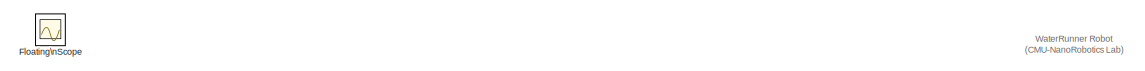
[diagram: root canvas - part 1/5, top left region]
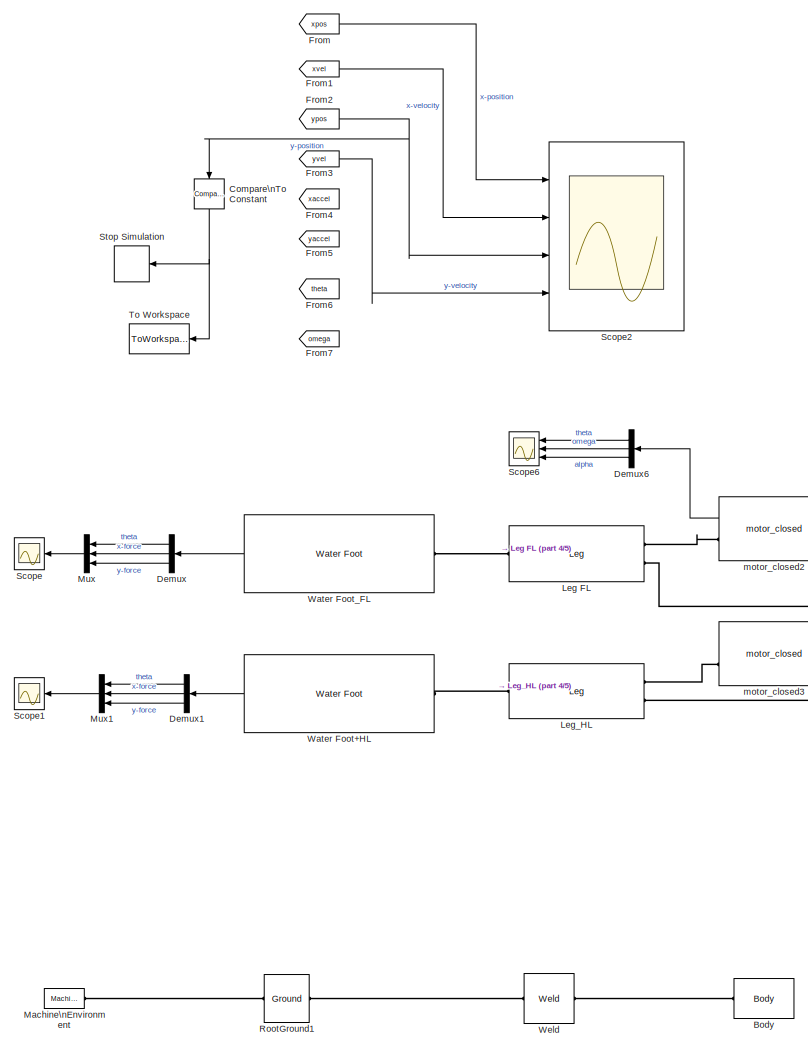
[diagram: root canvas - part 2/5, left side, full height]
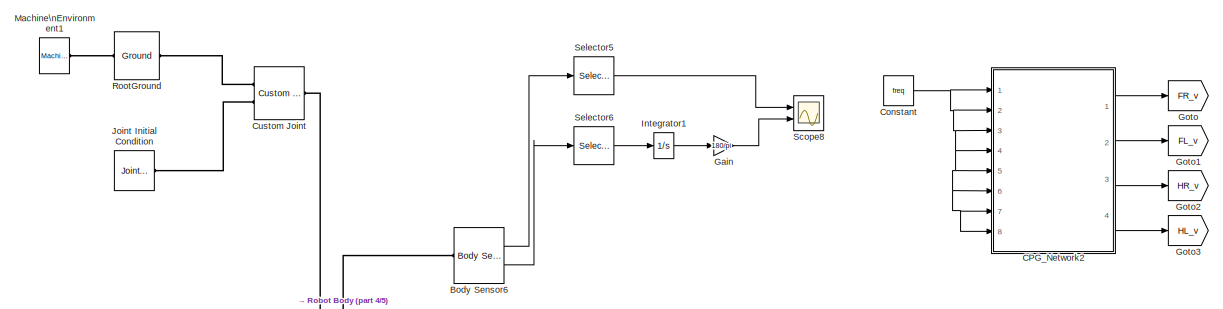
[diagram: root canvas - part 3/5, middle right region]
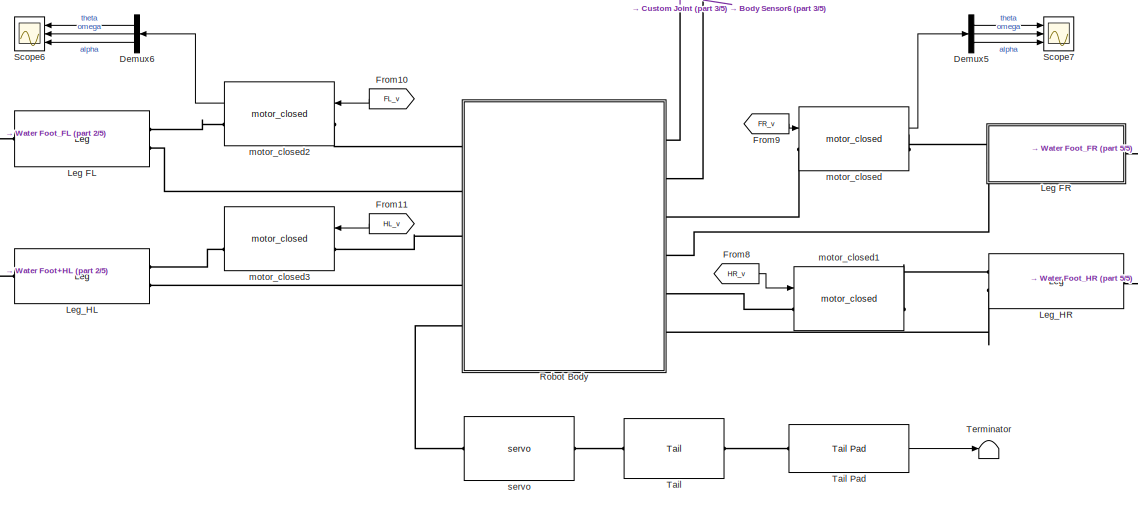
[diagram: root canvas - part 4/5, bottom center region]
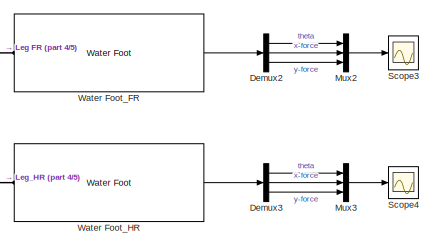
[diagram: root canvas - part 5/5, middle right region]
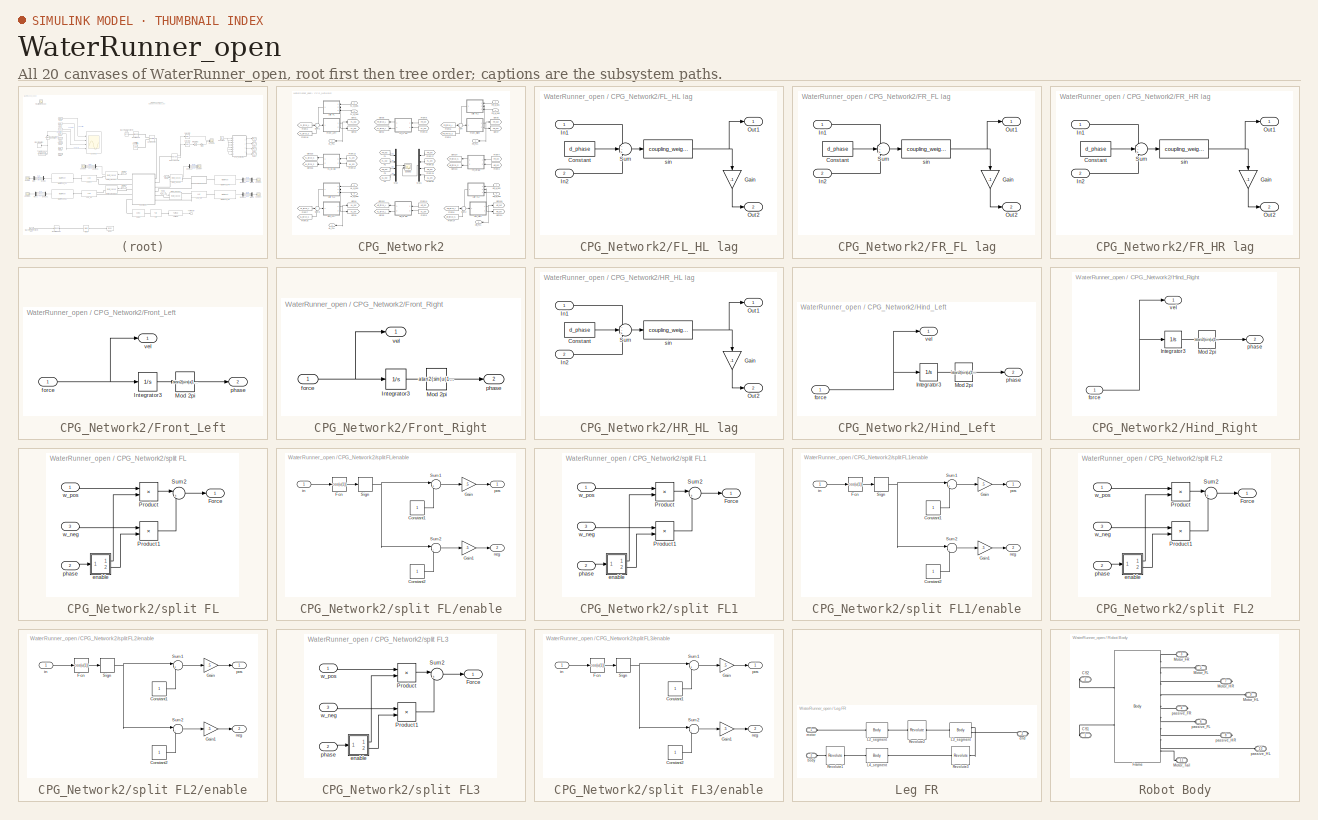
[diagram: thumbnail index - all 20 canvases of the model, root first then tree order]
MODEL WaterRunner_open
KIND model
BLOCK [Reference] Body  REF=mblibv1/Bodies/Body
  AttachedToCS = CG
  BodyColor = [0.83137 0.81569 0.78431]
  BodyColorSelMode = COLORPALETTE
  CG = Left$CG$[0 0 0]$WORLD$WORLD$m$[0 0 0]$Euler X-Y-Z$deg$WORLD$true$none
  CGPos = [0 0 0]
  CGRot = [0 0 0]
  CS0Pos = []
  CS0Rot = []
  CS10Pos = []
  CS10Rot = []
  CS11Pos = []
  CS11Rot = []
  CS12Pos = []
  CS12Rot = []
  CS13Pos = []
  CS13Rot = []
  CS14Pos = []
  CS14Rot = []
  CS15Pos = []
  CS15Rot = []
  CS16Pos = []
  CS16Rot = []
  CS17Pos = []
  CS17Rot = []
  CS18Pos = []
  CS18Rot = []
  CS19Pos = []
  CS19Rot = []
  CS1Pos = [-0.5 water_level -0.2 ]
  CS1Rot = [0 0 0]
  CS20Pos = []
  CS20Rot = []
  CS2Pos = [-0.5 water_level 0.2 ]
  CS2Rot = [0 0 0]
  CS3Pos = [4 water_level -0.2 ]
  CS3Rot = [0 0 0]
  CS4Pos = [4 water_level 0.2 ]
  CS4Rot = [0 0 0]
  CS5Pos = []
  CS5Rot = []
  CS6Pos = []
  CS6Rot = []
  CS7Pos = []
  CS7Rot = []
  CS8Pos = []
  CS8Rot = []
  CS9Pos = []
  CS9Rot = []
  ClassName = Body
  Density = 1
  DensityUnits = kg/m^3
  DensityUse = false
  DialogClass = MechanicalBodyBlock
  GraphicsMode = CONVHULL
  Inertia = eye(3)
  InertiaUnits = kg*m^2
  LConnTagsString = CG
  Mass = 1
  MassUnits = kg
  Ports = [0, 0, 0, 0, 0, 1]
  SID = 276
  Shape = Cylinder
  ShapeDims = [1 1]
  ShapeUnits = m
  ShapeUse = false
  SourceBlock = mblibv1/Bodies/Body
  SourceType = Body
  UpdateFromCAD = off
  WorkingFrames = Left$CS1$[-0.5 water_level -0.2 ]$CG$CG$m$[0 0 0]$Euler X-Y-Z$deg$WORLD$false$none#Left$CS2$[-0.5 water_level 0.2 ]$CG$CG$m$[0 0 0]$Euler X-Y-Z$deg$WORLD$false$none#Left$CS3$[4 water_level -0.2 ]$CG$CG$m$[0 0 0]$Euler X-Y-Z$deg$WORLD$false$none#Left$CS4$[4 water_level 0.2 ]$CG$CG$m$[0 0 0]$Euler X-Y-Z$deg$WORLD$false$none
BLOCK [Reference] Body Sensor6  REF=mblibv1/Sensors & \nActuators/Body Sensor
  Acceleration = off
  AccelerationUnits = m/s^2
  ActiveIO = on
  Angle = on
  AngleUnits = deg
  ArcAcceleration = off
  ArcAccelerationUnits = deg/s^2
  ArcVelocity = on
  ArcVelocityUnits = rad/s
  ClassName = BodySensor
  CoordPosition = off
  CoordPositionUnits = m
  DialogClass = MechanicalSensorBlock
  Muxed = off
  OutputVector = [1]
  PhysicalDomain = Mechanical
  PortType = blob
  Ports = [0, 2, 0, 0, 0, 1]
  Pose = off
  Quaternion = on
  QuaternionDDT = off
  QuaternionDT = off
  QuaternionUnits = off
  ReferenceFrame = Absolute (World)
  SID = 2148
  SourceBlock = mblibv1/Sensors & \nActuators/Body Sensor
  SourceType = Body Sensor
  UpdateFromCAD = off
  Velocity = on
  VelocityUnits = m/s
  Width = 6
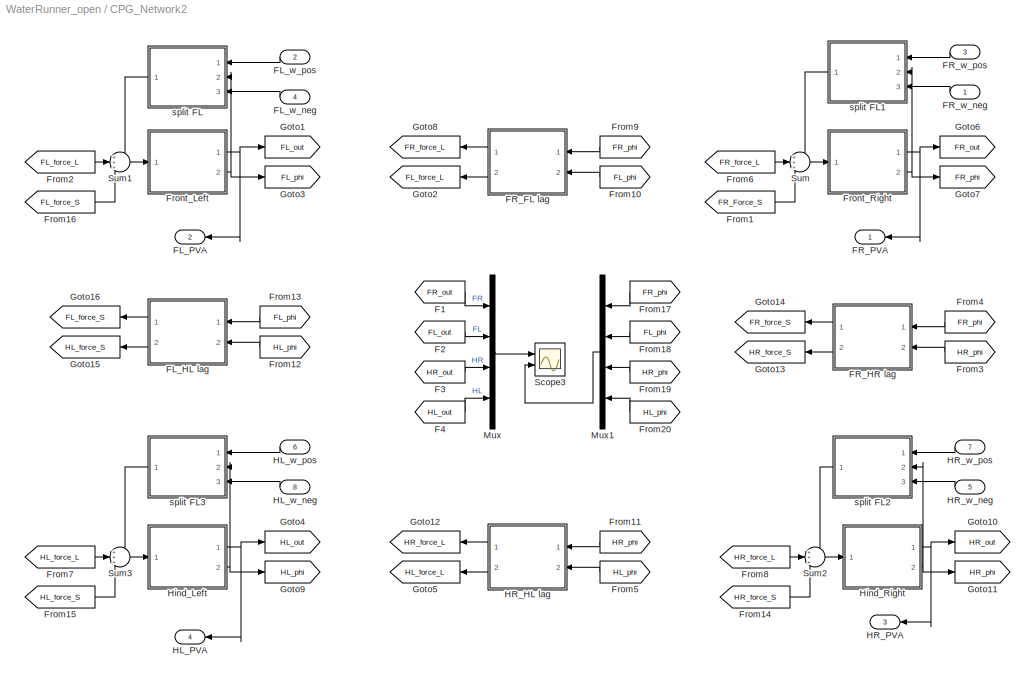
BLOCK [SubSystem] CPG_Network2
  FunctionWithSeparateData = off
  MaskHideContents = off
  MinAlgLoopOccurrences = off
  Opaque = off
  Ports = [8, 4]
  PropExecContextOutsideSubsystem = off
  RTWSystemCode = Auto
  RequestExecContextInheritance = off
  SID = 1446
BLOCK [From] CPG_Network2/F1
  GotoTag = FR_out
  SID = 1455
BLOCK [From] CPG_Network2/F2
  GotoTag = FL_out
  SID = 1456
BLOCK [From] CPG_Network2/F3
  GotoTag = HR_out
  SID = 1457
BLOCK [From] CPG_Network2/F4
  GotoTag = HL_out
  SID = 1458
BLOCK [SubSystem] CPG_Network2/FL_HL lag
  FunctionWithSeparateData = off
  MaskHideContents = off
  MinAlgLoopOccurrences = off
  Opaque = off
  Ports = [2, 2]
  PropExecContextOutsideSubsystem = off
  RTWSystemCode = Auto
  RequestExecContextInheritance = off
  SID = 1459
BLOCK [Constant] CPG_Network2/FL_HL lag/Constant
  SID = 1462
  Value = d_phase
BLOCK [Gain] CPG_Network2/FL_HL lag/Gain
  Gain = -1
  OutDataTypeStr = Inherit: Inherit via internal rule
  ParamDataTypeStr = Inherit: Inherit via internal rule
  SID = 1463
  SaturateOnIntegerOverflow = off
BLOCK [Inport] CPG_Network2/FL_HL lag/In1
  IconDisplay = Port number
  SID = 1460
BLOCK [Inport] CPG_Network2/FL_HL lag/In2
  IconDisplay = Port number
  Port = 2
  SID = 1461
BLOCK [Outport] CPG_Network2/FL_HL lag/Out1
  IconDisplay = Port number
  SID = 1466
BLOCK [Outport] CPG_Network2/FL_HL lag/Out2
  IconDisplay = Port number
  Port = 2
  SID = 1467
BLOCK [Sum] CPG_Network2/FL_HL lag/Sum
  IconShape = round
  InputSameDT = off
  Inputs = --+
  OutDataTypeStr = Inherit: Inherit via internal rule
  Ports = [3, 1]
  SID = 1464
  SaturateOnIntegerOverflow = off
BLOCK [Fcn] CPG_Network2/FL_HL lag/sin
  Expr = coupling_weight*sin(u(1))
  SID = 1465
BLOCK [Outport] CPG_Network2/FL_PVA
  IconDisplay = Port number
  Port = 2
  SID = 1651
BLOCK [Inport] CPG_Network2/FL_w_neg
  IconDisplay = Port number
  Port = 4
  SID = 1450
BLOCK [Inport] CPG_Network2/FL_w_pos
  IconDisplay = Port number
  Port = 2
  SID = 1448
BLOCK [SubSystem] CPG_Network2/FR_FL lag
  FunctionWithSeparateData = off
  MaskHideContents = off
  MinAlgLoopOccurrences = off
  Opaque = off
  Ports = [2, 2]
  PropExecContextOutsideSubsystem = off
  RTWSystemCode = Auto
  RequestExecContextInheritance = off
  SID = 1468
BLOCK [Constant] CPG_Network2/FR_FL lag/Constant
  SID = 1471
  Value = d_phase
BLOCK [Gain] CPG_Network2/FR_FL lag/Gain
  Gain = -1
  OutDataTypeStr = Inherit: Inherit via internal rule
  ParamDataTypeStr = Inherit: Inherit via internal rule
  SID = 1472
  SaturateOnIntegerOverflow = off
BLOCK [Inport] CPG_Network2/FR_FL lag/In1
  IconDisplay = Port number
  SID = 1469
BLOCK [Inport] CPG_Network2/FR_FL lag/In2
  IconDisplay = Port number
  Port = 2
  SID = 1470
BLOCK [Outport] CPG_Network2/FR_FL lag/Out1
  IconDisplay = Port number
  SID = 1475
BLOCK [Outport] CPG_Network2/FR_FL lag/Out2
  IconDisplay = Port number
  Port = 2
  SID = 1476
BLOCK [Sum] CPG_Network2/FR_FL lag/Sum
  IconShape = round
  InputSameDT = off
  Inputs = --+
  OutDataTypeStr = Inherit: Inherit via internal rule
  Ports = [3, 1]
  SID = 1473
  SaturateOnIntegerOverflow = off
BLOCK [Fcn] CPG_Network2/FR_FL lag/sin
  Expr = coupling_weight*sin(u(1))
  SID = 1474
BLOCK [SubSystem] CPG_Network2/FR_HR lag
  FunctionWithSeparateData = off
  MaskHideContents = off
  MinAlgLoopOccurrences = off
  Opaque = off
  Ports = [2, 2]
  PropExecContextOutsideSubsystem = off
  RTWSystemCode = Auto
  RequestExecContextInheritance = off
  SID = 1477
BLOCK [Constant] CPG_Network2/FR_HR lag/Constant
  SID = 1480
  Value = d_phase
BLOCK [Gain] CPG_Network2/FR_HR lag/Gain
  Gain = -1
  OutDataTypeStr = Inherit: Inherit via internal rule
  ParamDataTypeStr = Inherit: Inherit via internal rule
  SID = 1481
  SaturateOnIntegerOverflow = off
BLOCK [Inport] CPG_Network2/FR_HR lag/In1
  IconDisplay = Port number
  SID = 1478
BLOCK [Inport] CPG_Network2/FR_HR lag/In2
  IconDisplay = Port number
  Port = 2
  SID = 1479
BLOCK [Outport] CPG_Network2/FR_HR lag/Out1
  IconDisplay = Port number
  SID = 1484
BLOCK [Outport] CPG_Network2/FR_HR lag/Out2
  IconDisplay = Port number
  Port = 2
  SID = 1485
BLOCK [Sum] CPG_Network2/FR_HR lag/Sum
  IconShape = round
  InputSameDT = off
  Inputs = --+
  OutDataTypeStr = Inherit: Inherit via internal rule
  Ports = [3, 1]
  SID = 1482
  SaturateOnIntegerOverflow = off
BLOCK [Fcn] CPG_Network2/FR_HR lag/sin
  Expr = coupling_weight*sin(u(1))
  SID = 1483
BLOCK [Outport] CPG_Network2/FR_PVA
  IconDisplay = Port number
  SID = 1650
BLOCK [Inport] CPG_Network2/FR_w_neg
  IconDisplay = Port number
  SID = 1447
BLOCK [Inport] CPG_Network2/FR_w_pos
  IconDisplay = Port number
  Port = 3
  SID = 1449
BLOCK [From] CPG_Network2/From1
  GotoTag = FR_Force_S
  SID = 1486
BLOCK [From] CPG_Network2/From10
  GotoTag = FL_phi
  SID = 1487
BLOCK [From] CPG_Network2/From11
  GotoTag = HR_phi
  SID = 1488
BLOCK [From] CPG_Network2/From12
  GotoTag = HL_phi
  SID = 1489
BLOCK [From] CPG_Network2/From13
  GotoTag = FL_phi
  SID = 1490
BLOCK [From] CPG_Network2/From14
  GotoTag = HR_force_S
  SID = 1491
BLOCK [From] CPG_Network2/From15
  GotoTag = HL_force_S
  SID = 1492
BLOCK [From] CPG_Network2/From16
  GotoTag = FL_force_S
  SID = 1493
BLOCK [From] CPG_Network2/From17
  GotoTag = FR_phi
  SID = 1494
BLOCK [From] CPG_Network2/From18
  GotoTag = FL_phi
  SID = 1495
BLOCK [From] CPG_Network2/From19
  GotoTag = HR_phi
  SID = 1496
BLOCK [From] CPG_Network2/From2
  GotoTag = FL_force_L
  SID = 1497
BLOCK [From] CPG_Network2/From20
  GotoTag = HL_phi
  SID = 1498
BLOCK [From] CPG_Network2/From3
  GotoTag = HR_phi
  SID = 1499
BLOCK [From] CPG_Network2/From4
  GotoTag = FR_phi
  SID = 1500
BLOCK [From] CPG_Network2/From5
  GotoTag = HL_phi
  SID = 1501
BLOCK [From] CPG_Network2/From6
  GotoTag = FR_force_L
  SID = 1502
BLOCK [From] CPG_Network2/From7
  GotoTag = HL_force_L
  SID = 1503
BLOCK [From] CPG_Network2/From8
  GotoTag = HR_force_L
  SID = 1504
BLOCK [From] CPG_Network2/From9
  GotoTag = FR_phi
  SID = 1505
BLOCK [SubSystem] CPG_Network2/Front_Left
  FunctionWithSeparateData = off
  MaskHideContents = off
  MinAlgLoopOccurrences = off
  Opaque = off
  Ports = [1, 2]
  PropExecContextOutsideSubsystem = off
  RTWSystemCode = Auto
  RequestExecContextInheritance = off
  SID = 1506
BLOCK [Integrator] CPG_Network2/Front_Left/Integrator3
  InitialCondition = init_phi + 0.001*rand
  Ports = [1, 1]
  SID = 1509
BLOCK [Fcn] CPG_Network2/Front_Left/Mod 2pi
  Expr = atan2(sin(u(1)-pi),cos(u(1)-pi))+pi
  SID = 1510
BLOCK [Inport] CPG_Network2/Front_Left/force
  IconDisplay = Port number
  SID = 1507
BLOCK [Outport] CPG_Network2/Front_Left/phase
  IconDisplay = Port number
  Port = 2
  SID = 1513
BLOCK [Outport] CPG_Network2/Front_Left/vel
  IconDisplay = Port number
  SID = 1512
BLOCK [SubSystem] CPG_Network2/Front_Right
  FunctionWithSeparateData = off
  MaskHideContents = off
  MinAlgLoopOccurrences = off
  Opaque = off
  Ports = [1, 2]
  PropExecContextOutsideSubsystem = off
  RTWSystemCode = Auto
  RequestExecContextInheritance = off
  SID = 1514
BLOCK [Integrator] CPG_Network2/Front_Right/Integrator3
  InitialCondition = init_phi + 0.001*rand
  Ports = [1, 1]
  SID = 1517
BLOCK [Fcn] CPG_Network2/Front_Right/Mod 2pi
  Expr = atan2(sin(u(1)-pi),cos(u(1)-pi))+pi
  SID = 1518
BLOCK [Inport] CPG_Network2/Front_Right/force
  IconDisplay = Port number
  SID = 1515
BLOCK [Outport] CPG_Network2/Front_Right/phase
  IconDisplay = Port number
  Port = 2
  SID = 1521
BLOCK [Outport] CPG_Network2/Front_Right/vel
  IconDisplay = Port number
  SID = 1520
BLOCK [Goto] CPG_Network2/Goto1
  GotoTag = FL_out
  SID = 1522
BLOCK [Goto] CPG_Network2/Goto10
  GotoTag = HR_out
  SID = 1523
BLOCK [Goto] CPG_Network2/Goto11
  GotoTag = HR_phi
  SID = 1524
BLOCK [Goto] CPG_Network2/Goto12
  GotoTag = HR_force_L
  SID = 1525
BLOCK [Goto] CPG_Network2/Goto13
  GotoTag = HR_force_S
  SID = 1526
BLOCK [Goto] CPG_Network2/Goto14
  GotoTag = FR_force_S
  SID = 1527
BLOCK [Goto] CPG_Network2/Goto15
  GotoTag = HL_force_S
  SID = 1528
BLOCK [Goto] CPG_Network2/Goto16
  GotoTag = FL_force_S
  SID = 1529
BLOCK [Goto] CPG_Network2/Goto2
  GotoTag = FL_force_L
  SID = 1530
BLOCK [Goto] CPG_Network2/Goto3
  GotoTag = FL_phi
  SID = 1531
BLOCK [Goto] CPG_Network2/Goto4
  GotoTag = HL_out
  SID = 1532
BLOCK [Goto] CPG_Network2/Goto5
  GotoTag = HL_force_L
  SID = 1533
BLOCK [Goto] CPG_Network2/Goto6
  GotoTag = FR_out
  SID = 1534
BLOCK [Goto] CPG_Network2/Goto7
  GotoTag = FR_phi
  SID = 1535
BLOCK [Goto] CPG_Network2/Goto8
  GotoTag = FR_force_L
  SID = 1536
BLOCK [Goto] CPG_Network2/Goto9
  GotoTag = HL_phi
  SID = 1537
BLOCK [Outport] CPG_Network2/HL_PVA
  IconDisplay = Port number
  Port = 4
  SID = 1653
BLOCK [Inport] CPG_Network2/HL_w_neg
  IconDisplay = Port number
  Port = 8
  SID = 1454
BLOCK [Inport] CPG_Network2/HL_w_pos
  IconDisplay = Port number
  Port = 6
  SID = 1452
BLOCK [SubSystem] CPG_Network2/HR_HL lag
  FunctionWithSeparateData = off
  MaskHideContents = off
  MinAlgLoopOccurrences = off
  Opaque = off
  Ports = [2, 2]
  PropExecContextOutsideSubsystem = off
  RTWSystemCode = Auto
  RequestExecContextInheritance = off
  SID = 1538
BLOCK [Constant] CPG_Network2/HR_HL lag/Constant
  SID = 1541
  Value = d_phase
BLOCK [Gain] CPG_Network2/HR_HL lag/Gain
  Gain = -1
  OutDataTypeStr = Inherit: Inherit via internal rule
  ParamDataTypeStr = Inherit: Inherit via internal rule
  SID = 1542
  SaturateOnIntegerOverflow = off
BLOCK [Inport] CPG_Network2/HR_HL lag/In1
  IconDisplay = Port number
  SID = 1539
BLOCK [Inport] CPG_Network2/HR_HL lag/In2
  IconDisplay = Port number
  Port = 2
  SID = 1540
BLOCK [Outport] CPG_Network2/HR_HL lag/Out1
  IconDisplay = Port number
  SID = 1545
BLOCK [Outport] CPG_Network2/HR_HL lag/Out2
  IconDisplay = Port number
  Port = 2
  SID = 1546
BLOCK [Sum] CPG_Network2/HR_HL lag/Sum
  IconShape = round
  InputSameDT = off
  Inputs = --+
  OutDataTypeStr = Inherit: Inherit via internal rule
  Ports = [3, 1]
  SID = 1543
  SaturateOnIntegerOverflow = off
BLOCK [Fcn] CPG_Network2/HR_HL lag/sin
  Expr = coupling_weight*sin(u(1))
  SID = 1544
BLOCK [Outport] CPG_Network2/HR_PVA
  IconDisplay = Port number
  Port = 3
  SID = 1652
BLOCK [Inport] CPG_Network2/HR_w_neg
  IconDisplay = Port number
  Port = 5
  SID = 1451
BLOCK [Inport] CPG_Network2/HR_w_pos
  IconDisplay = Port number
  Port = 7
  SID = 1453
BLOCK [SubSystem] CPG_Network2/Hind_Left
  FunctionWithSeparateData = off
  MaskHideContents = off
  MinAlgLoopOccurrences = off
  Opaque = off
  Ports = [1, 2]
  PropExecContextOutsideSubsystem = off
  RTWSystemCode = Auto
  RequestExecContextInheritance = off
  SID = 1547
BLOCK [Integrator] CPG_Network2/Hind_Left/Integrator3
  InitialCondition = init_phi + 0.001*rand
  Ports = [1, 1]
  SID = 1550
BLOCK [Fcn] CPG_Network2/Hind_Left/Mod 2pi
  Expr = atan2(sin(u(1)-pi),cos(u(1)-pi))+pi
  SID = 1551
BLOCK [Inport] CPG_Network2/Hind_Left/force
  IconDisplay = Port number
  SID = 1548
BLOCK [Outport] CPG_Network2/Hind_Left/phase
  IconDisplay = Port number
  Port = 2
  SID = 1554
BLOCK [Outport] CPG_Network2/Hind_Left/vel
  IconDisplay = Port number
  SID = 1553
BLOCK [SubSystem] CPG_Network2/Hind_Right
  FunctionWithSeparateData = off
  MaskHideContents = off
  MinAlgLoopOccurrences = off
  Opaque = off
  Ports = [1, 2]
  PropExecContextOutsideSubsystem = off
  RTWSystemCode = Auto
  RequestExecContextInheritance = off
  SID = 1555
BLOCK [Integrator] CPG_Network2/Hind_Right/Integrator3
  InitialCondition = init_phi + 0.001*rand
  Ports = [1, 1]
  SID = 1558
BLOCK [Fcn] CPG_Network2/Hind_Right/Mod 2pi
  Expr = atan2(sin(u(1)-pi),cos(u(1)-pi))+pi
  SID = 1559
BLOCK [Inport] CPG_Network2/Hind_Right/force
  IconDisplay = Port number
  SID = 1556
BLOCK [Outport] CPG_Network2/Hind_Right/phase
  IconDisplay = Port number
  Port = 2
  SID = 1562
BLOCK [Outport] CPG_Network2/Hind_Right/vel
  IconDisplay = Port number
  SID = 1561
BLOCK [Mux] CPG_Network2/Mux
  DisplayOption = bar
  Ports = [4, 1]
  SID = 1563
BLOCK [Mux] CPG_Network2/Mux1
  DisplayOption = bar
  Ports = [4, 1]
  SID = 1564
BLOCK [Scope] CPG_Network2/Scope3
  DataFormat = StructureWithTime
  Floating = off
  LegendLocations = 0.82521      0.8619     0.04625    0.083025\n0.92271     0.40074    0.058125    0.083025
  LimitDataPoints = off
  NumInputPorts = 2
  Ports = [2]
  SID = 1565
  SampleTime = 0
  SaveName = Output
  SaveToWorkspace = on
  ShowLegends = on
  TimeRange = 5
  YMax = 22.34~6.5
  YMin = 22.11~0
  ZoomMode = xonly
BLOCK [Sum] CPG_Network2/Sum
  IconShape = round
  InputSameDT = off
  Inputs = +++
  OutDataTypeStr = Inherit: Inherit via internal rule
  Ports = [3, 1]
  SID = 1566
  SaturateOnIntegerOverflow = off
BLOCK [Sum] CPG_Network2/Sum1
  IconShape = round
  InputSameDT = off
  Inputs = +++
  OutDataTypeStr = Inherit: Inherit via internal rule
  Ports = [3, 1]
  SID = 1567
  SaturateOnIntegerOverflow = off
BLOCK [Sum] CPG_Network2/Sum2
  IconShape = round
  InputSameDT = off
  Inputs = +++
  OutDataTypeStr = Inherit: Inherit via internal rule
  Ports = [3, 1]
  SID = 1568
  SaturateOnIntegerOverflow = off
BLOCK [Sum] CPG_Network2/Sum3
  IconShape = round
  InputSameDT = off
  Inputs = +++
  OutDataTypeStr = Inherit: Inherit via internal rule
  Ports = [3, 1]
  SID = 1569
  SaturateOnIntegerOverflow = off
BLOCK [SubSystem] CPG_Network2/split FL
  FunctionWithSeparateData = off
  MaskHideContents = off
  MinAlgLoopOccurrences = off
  Opaque = off
  Ports = [3, 1]
  PropExecContextOutsideSubsystem = off
  RTWSystemCode = Auto
  RequestExecContextInheritance = off
  SID = 1570
BLOCK [Outport] CPG_Network2/split FL/Force
  IconDisplay = Port number
  SID = 1589
BLOCK [Product] CPG_Network2/split FL/Product
  InputSameDT = off
  OutDataTypeStr = Inherit: Inherit via internal rule
  Ports = [2, 1]
  SID = 1574
  SaturateOnIntegerOverflow = off
BLOCK [Product] CPG_Network2/split FL/Product1
  InputSameDT = off
  OutDataTypeStr = Inherit: Inherit via internal rule
  Ports = [2, 1]
  SID = 1575
  SaturateOnIntegerOverflow = off
BLOCK [Sum] CPG_Network2/split FL/Sum2
  IconShape = round
  InputSameDT = off
  Inputs = |++
  OutDataTypeStr = Inherit: Inherit via internal rule
  Ports = [2, 1]
  SID = 1576
  SaturateOnIntegerOverflow = off
BLOCK [SubSystem] CPG_Network2/split FL/enable
  FunctionWithSeparateData = off
  MaskHideContents = off
  MinAlgLoopOccurrences = off
  Opaque = off
  Ports = [1, 2]
  PropExecContextOutsideSubsystem = off
  RTWSystemCode = Auto
  RequestExecContextInheritance = off
  SID = 1577
BLOCK [Constant] CPG_Network2/split FL/enable/Constant1
  SID = 1579
BLOCK [Constant] CPG_Network2/split FL/enable/Constant2
  SID = 1580
BLOCK [Fcn] CPG_Network2/split FL/enable/Fcn
  Expr = cos(u(1))
  SID = 1581
BLOCK [Gain] CPG_Network2/split FL/enable/Gain
  Gain = .5
  OutDataTypeStr = Inherit: Inherit via internal rule
  ParamDataTypeStr = Inherit: Inherit via internal rule
  SID = 1582
  SaturateOnIntegerOverflow = off
BLOCK [Gain] CPG_Network2/split FL/enable/Gain1
  Gain = .5
  OutDataTypeStr = Inherit: Inherit via internal rule
  ParamDataTypeStr = Inherit: Inherit via internal rule
  SID = 1583
  SaturateOnIntegerOverflow = off
BLOCK [Signum] CPG_Network2/split FL/enable/Sign
  SID = 1584
BLOCK [Sum] CPG_Network2/split FL/enable/Sum1
  IconShape = round
  InputSameDT = off
  Inputs = |++
  OutDataTypeStr = Inherit: Inherit via internal rule
  Ports = [2, 1]
  SID = 1585
  SaturateOnIntegerOverflow = off
BLOCK [Sum] CPG_Network2/split FL/enable/Sum2
  IconShape = round
  InputSameDT = off
  Inputs = |-+
  OutDataTypeStr = Inherit: Inherit via internal rule
  Ports = [2, 1]
  SID = 1586
  SaturateOnIntegerOverflow = off
BLOCK [Inport] CPG_Network2/split FL/enable/in
  IconDisplay = Port number
  SID = 1578
BLOCK [Outport] CPG_Network2/split FL/enable/neg
  IconDisplay = Port number
  Port = 2
  SID = 1588
BLOCK [Outport] CPG_Network2/split FL/enable/pos
  IconDisplay = Port number
  SID = 1587
BLOCK [Inport] CPG_Network2/split FL/phase
  IconDisplay = Port number
  Port = 2
  SID = 1572
BLOCK [Inport] CPG_Network2/split FL/w_neg
  IconDisplay = Port number
  Port = 3
  SID = 1573
BLOCK [Inport] CPG_Network2/split FL/w_pos
  IconDisplay = Port number
  SID = 1571
BLOCK [SubSystem] CPG_Network2/split FL1
  FunctionWithSeparateData = off
  MaskHideContents = off
  MinAlgLoopOccurrences = off
  Opaque = off
  Ports = [3, 1]
  PropExecContextOutsideSubsystem = off
  RTWSystemCode = Auto
  RequestExecContextInheritance = off
  SID = 1590
BLOCK [Outport] CPG_Network2/split FL1/Force
  IconDisplay = Port number
  SID = 1609
BLOCK [Product] CPG_Network2/split FL1/Product
  InputSameDT = off
  OutDataTypeStr = Inherit: Inherit via internal rule
  Ports = [2, 1]
  SID = 1594
  SaturateOnIntegerOverflow = off
BLOCK [Product] CPG_Network2/split FL1/Product1
  InputSameDT = off
  OutDataTypeStr = Inherit: Inherit via internal rule
  Ports = [2, 1]
  SID = 1595
  SaturateOnIntegerOverflow = off
BLOCK [Sum] CPG_Network2/split FL1/Sum2
  IconShape = round
  InputSameDT = off
  Inputs = |++
  OutDataTypeStr = Inherit: Inherit via internal rule
  Ports = [2, 1]
  SID = 1596
  SaturateOnIntegerOverflow = off
BLOCK [SubSystem] CPG_Network2/split FL1/enable
  FunctionWithSeparateData = off
  MaskHideContents = off
  MinAlgLoopOccurrences = off
  Opaque = off
  Ports = [1, 2]
  PropExecContextOutsideSubsystem = off
  RTWSystemCode = Auto
  RequestExecContextInheritance = off
  SID = 1597
BLOCK [Constant] CPG_Network2/split FL1/enable/Constant1
  SID = 1599
BLOCK [Constant] CPG_Network2/split FL1/enable/Constant2
  SID = 1600
BLOCK [Fcn] CPG_Network2/split FL1/enable/Fcn
  Expr = cos(u(1))
  SID = 1601
BLOCK [Gain] CPG_Network2/split FL1/enable/Gain
  Gain = .5
  OutDataTypeStr = Inherit: Inherit via internal rule
  ParamDataTypeStr = Inherit: Inherit via internal rule
  SID = 1602
  SaturateOnIntegerOverflow = off
BLOCK [Gain] CPG_Network2/split FL1/enable/Gain1
  Gain = .5
  OutDataTypeStr = Inherit: Inherit via internal rule
  ParamDataTypeStr = Inherit: Inherit via internal rule
  SID = 1603
  SaturateOnIntegerOverflow = off
BLOCK [Signum] CPG_Network2/split FL1/enable/Sign
  SID = 1604
BLOCK [Sum] CPG_Network2/split FL1/enable/Sum1
  IconShape = round
  InputSameDT = off
  Inputs = |++
  OutDataTypeStr = Inherit: Inherit via internal rule
  Ports = [2, 1]
  SID = 1605
  SaturateOnIntegerOverflow = off
BLOCK [Sum] CPG_Network2/split FL1/enable/Sum2
  IconShape = round
  InputSameDT = off
  Inputs = |-+
  OutDataTypeStr = Inherit: Inherit via internal rule
  Ports = [2, 1]
  SID = 1606
  SaturateOnIntegerOverflow = off
BLOCK [Inport] CPG_Network2/split FL1/enable/in
  IconDisplay = Port number
  SID = 1598
BLOCK [Outport] CPG_Network2/split FL1/enable/neg
  IconDisplay = Port number
  Port = 2
  SID = 1608
BLOCK [Outport] CPG_Network2/split FL1/enable/pos
  IconDisplay = Port number
  SID = 1607
BLOCK [Inport] CPG_Network2/split FL1/phase
  IconDisplay = Port number
  Port = 2
  SID = 1592
BLOCK [Inport] CPG_Network2/split FL1/w_neg
  IconDisplay = Port number
  Port = 3
  SID = 1593
BLOCK [Inport] CPG_Network2/split FL1/w_pos
  IconDisplay = Port number
  SID = 1591
BLOCK [SubSystem] CPG_Network2/split FL2
  FunctionWithSeparateData = off
  MaskHideContents = off
  MinAlgLoopOccurrences = off
  Opaque = off
  Ports = [3, 1]
  PropExecContextOutsideSubsystem = off
  RTWSystemCode = Auto
  RequestExecContextInheritance = off
  SID = 1610
BLOCK [Outport] CPG_Network2/split FL2/Force
  IconDisplay = Port number
  SID = 1629
BLOCK [Product] CPG_Network2/split FL2/Product
  InputSameDT = off
  OutDataTypeStr = Inherit: Inherit via internal rule
  Ports = [2, 1]
  SID = 1614
  SaturateOnIntegerOverflow = off
BLOCK [Product] CPG_Network2/split FL2/Product1
  InputSameDT = off
  OutDataTypeStr = Inherit: Inherit via internal rule
  Ports = [2, 1]
  SID = 1615
  SaturateOnIntegerOverflow = off
BLOCK [Sum] CPG_Network2/split FL2/Sum2
  IconShape = round
  InputSameDT = off
  Inputs = |++
  OutDataTypeStr = Inherit: Inherit via internal rule
  Ports = [2, 1]
  SID = 1616
  SaturateOnIntegerOverflow = off
BLOCK [SubSystem] CPG_Network2/split FL2/enable
  FunctionWithSeparateData = off
  MaskHideContents = off
  MinAlgLoopOccurrences = off
  Opaque = off
  Ports = [1, 2]
  PropExecContextOutsideSubsystem = off
  RTWSystemCode = Auto
  RequestExecContextInheritance = off
  SID = 1617
BLOCK [Constant] CPG_Network2/split FL2/enable/Constant1
  SID = 1619
BLOCK [Constant] CPG_Network2/split FL2/enable/Constant2
  SID = 1620
BLOCK [Fcn] CPG_Network2/split FL2/enable/Fcn
  Expr = cos(u(1))
  SID = 1621
BLOCK [Gain] CPG_Network2/split FL2/enable/Gain
  Gain = .5
  OutDataTypeStr = Inherit: Inherit via internal rule
  ParamDataTypeStr = Inherit: Inherit via internal rule
  SID = 1622
  SaturateOnIntegerOverflow = off
BLOCK [Gain] CPG_Network2/split FL2/enable/Gain1
  Gain = .5
  OutDataTypeStr = Inherit: Inherit via internal rule
  ParamDataTypeStr = Inherit: Inherit via internal rule
  SID = 1623
  SaturateOnIntegerOverflow = off
BLOCK [Signum] CPG_Network2/split FL2/enable/Sign
  SID = 1624
BLOCK [Sum] CPG_Network2/split FL2/enable/Sum1
  IconShape = round
  InputSameDT = off
  Inputs = |++
  OutDataTypeStr = Inherit: Inherit via internal rule
  Ports = [2, 1]
  SID = 1625
  SaturateOnIntegerOverflow = off
BLOCK [Sum] CPG_Network2/split FL2/enable/Sum2
  IconShape = round
  InputSameDT = off
  Inputs = |-+
  OutDataTypeStr = Inherit: Inherit via internal rule
  Ports = [2, 1]
  SID = 1626
  SaturateOnIntegerOverflow = off
BLOCK [Inport] CPG_Network2/split FL2/enable/in
  IconDisplay = Port number
  SID = 1618
BLOCK [Outport] CPG_Network2/split FL2/enable/neg
  IconDisplay = Port number
  Port = 2
  SID = 1628
BLOCK [Outport] CPG_Network2/split FL2/enable/pos
  IconDisplay = Port number
  SID = 1627
BLOCK [Inport] CPG_Network2/split FL2/phase
  IconDisplay = Port number
  Port = 2
  SID = 1612
BLOCK [Inport] CPG_Network2/split FL2/w_neg
  IconDisplay = Port number
  Port = 3
  SID = 1613
BLOCK [Inport] CPG_Network2/split FL2/w_pos
  IconDisplay = Port number
  SID = 1611
BLOCK [SubSystem] CPG_Network2/split FL3
  FunctionWithSeparateData = off
  MaskHideContents = off
  MinAlgLoopOccurrences = off
  Opaque = off
  Ports = [3, 1]
  PropExecContextOutsideSubsystem = off
  RTWSystemCode = Auto
  RequestExecContextInheritance = off
  SID = 1630
BLOCK [Outport] CPG_Network2/split FL3/Force
  IconDisplay = Port number
  SID = 1649
BLOCK [Product] CPG_Network2/split FL3/Product
  InputSameDT = off
  OutDataTypeStr = Inherit: Inherit via internal rule
  Ports = [2, 1]
  SID = 1634
  SaturateOnIntegerOverflow = off
BLOCK [Product] CPG_Network2/split FL3/Product1
  InputSameDT = off
  OutDataTypeStr = Inherit: Inherit via internal rule
  Ports = [2, 1]
  SID = 1635
  SaturateOnIntegerOverflow = off
BLOCK [Sum] CPG_Network2/split FL3/Sum2
  IconShape = round
  InputSameDT = off
  Inputs = |++
  OutDataTypeStr = Inherit: Inherit via internal rule
  Ports = [2, 1]
  SID = 1636
  SaturateOnIntegerOverflow = off
BLOCK [SubSystem] CPG_Network2/split FL3/enable
  FunctionWithSeparateData = off
  MaskHideContents = off
  MinAlgLoopOccurrences = off
  Opaque = off
  Ports = [1, 2]
  PropExecContextOutsideSubsystem = off
  RTWSystemCode = Auto
  RequestExecContextInheritance = off
  SID = 1637
BLOCK [Constant] CPG_Network2/split FL3/enable/Constant1
  SID = 1639
BLOCK [Constant] CPG_Network2/split FL3/enable/Constant2
  SID = 1640
BLOCK [Fcn] CPG_Network2/split FL3/enable/Fcn
  Expr = cos(u(1))
  SID = 1641
BLOCK [Gain] CPG_Network2/split FL3/enable/Gain
  Gain = .5
  OutDataTypeStr = Inherit: Inherit via internal rule
  ParamDataTypeStr = Inherit: Inherit via internal rule
  SID = 1642
  SaturateOnIntegerOverflow = off
BLOCK [Gain] CPG_Network2/split FL3/enable/Gain1
  Gain = .5
  OutDataTypeStr = Inherit: Inherit via internal rule
  ParamDataTypeStr = Inherit: Inherit via internal rule
  SID = 1643
  SaturateOnIntegerOverflow = off
BLOCK [Signum] CPG_Network2/split FL3/enable/Sign
  SID = 1644
BLOCK [Sum] CPG_Network2/split FL3/enable/Sum1
  IconShape = round
  InputSameDT = off
  Inputs = |++
  OutDataTypeStr = Inherit: Inherit via internal rule
  Ports = [2, 1]
  SID = 1645
  SaturateOnIntegerOverflow = off
BLOCK [Sum] CPG_Network2/split FL3/enable/Sum2
  IconShape = round
  InputSameDT = off
  Inputs = |-+
  OutDataTypeStr = Inherit: Inherit via internal rule
  Ports = [2, 1]
  SID = 1646
  SaturateOnIntegerOverflow = off
BLOCK [Inport] CPG_Network2/split FL3/enable/in
  IconDisplay = Port number
  SID = 1638
BLOCK [Outport] CPG_Network2/split FL3/enable/neg
  IconDisplay = Port number
  Port = 2
  SID = 1648
BLOCK [Outport] CPG_Network2/split FL3/enable/pos
  IconDisplay = Port number
  SID = 1647
BLOCK [Inport] CPG_Network2/split FL3/phase
  IconDisplay = Port number
  Port = 2
  SID = 1632
BLOCK [Inport] CPG_Network2/split FL3/w_neg
  IconDisplay = Port number
  Port = 3
  SID = 1633
BLOCK [Inport] CPG_Network2/split FL3/w_pos
  IconDisplay = Port number
  SID = 1631
BLOCK [Reference] Compare\nTo Constant  REF=simulink/Logic and Bit\nOperations/Compare\nTo Constant
  OutDataTypeStr = boolean
  Ports = [1, 1]
  SID = 1377
  SourceBlock = simulink/Logic and Bit\nOperations/Compare\nTo Constant
  SourceType = Compare To Constant
  ZeroCross = on
  const = -.03
  relop = <
BLOCK [Constant] Constant
  SID = 2203
  Value = freq
BLOCK [Reference] Custom Joint  REF=mblibv1/Joints/Custom Joint
  ClassName = Joint
  CutJoint = off
  DialogClass = JointBlock
  LConnTagsString = __newl0|SA1
  MarkAsCut = off
  NumSAPorts = 1
  P1Axis = [0 1 0]
  P2Axis = [1 0 0]
  P3Axis = []
  Ports = [0, 0, 0, 0, 0, 2, 1]
  PrimitiveProps = P1$World$[0 1 0]$Prismatic#P2$World$[1 0 0]$Prismatic#R1$World$[0 0 1]$Revolute
  Primitives = prismatic
  R1Axis = [0 0 1]
  R2Axis = []
  R3Axis = []
  RConnTagsString = __newr0
  SAxis = []
  SID = 2145
  SourceBlock = mblibv1/Joints/Custom Joint
  SourceType = Custom Joint
  UpdateFromCAD = off
BLOCK [Demux] Demux
  DisplayOption = bar
  Outputs = 3
  Ports = [1, 3]
  SID = 1210
BLOCK [Demux] Demux1
  DisplayOption = bar
  Outputs = 3
  Ports = [1, 3]
  SID = 1303
BLOCK [Demux] Demux2
  DisplayOption = bar
  Outputs = 3
  Ports = [1, 3]
  SID = 1311
BLOCK [Demux] Demux3
  DisplayOption = bar
  Outputs = 3
  Ports = [1, 3]
  SID = 1318
BLOCK [Demux] Demux5
  DisplayOption = bar
  Outputs = 3
  Ports = [1, 3]
  SID = 1400
BLOCK [Demux] Demux6
  DisplayOption = bar
  Outputs = 3
  Ports = [1, 3]
  SID = 1413
BLOCK [Scope] Floating\nScope
  DataFormat = StructureWithTime
  Floating = on
  IOType = viewer
  NumInputPorts = 1
  Ports = []
  SID = 1208
  SampleTime = 0
  SaveName = ScopeData1
  ShowLegends = off
BLOCK [From] From
  GotoTag = xpos
  SID = 1245
BLOCK [From] From1
  GotoTag = xvel
  SID = 1251
BLOCK [From] From10
  GotoTag = FL_v
  SID = 1669
BLOCK [From] From11
  GotoTag = HL_v
  SID = 1670
BLOCK [From] From2
  GotoTag = ypos
  SID = 1266
BLOCK [From] From3
  GotoTag = yvel
  SID = 1267
BLOCK [From] From4
  GotoTag = xaccel
  SID = 1373
BLOCK [From] From5
  GotoTag = yaccel
  SID = 1374
BLOCK [From] From6
  GotoTag = theta
  SID = 1444
BLOCK [From] From7
  GotoTag = omega
  SID = 1445
BLOCK [From] From8
  GotoTag = HR_v
  SID = 1668
BLOCK [From] From9
  GotoTag = FR_v
  SID = 1660
BLOCK [Gain] Gain
  Gain = 180/pi
  OutDataTypeStr = Inherit: Inherit via internal rule
  ParamDataTypeStr = Inherit: Inherit via internal rule
  SID = 2174
  SaturateOnIntegerOverflow = off
BLOCK [Goto] Goto
  GotoTag = FR_v
  SID = 1655
BLOCK [Goto] Goto1
  GotoTag = FL_v
  SID = 1656
BLOCK [Goto] Goto2
  GotoTag = HR_v
  SID = 1657
BLOCK [Goto] Goto3
  GotoTag = HL_v
  SID = 1658
BLOCK [Integrator] Integrator1
  Ports = [1, 1]
  SID = 2153
BLOCK [Reference] Joint Initial Condition  REF=mblibv1/Sensors & \nActuators/Joint Initial Condition
  ClassName = InitialCondition
  DialogClass = InitialConditionBlock
  InitialConditions = P1$true$0$m$deg$0$m/s$deg/s#P2$true$initRobHeight$m$deg$0$m/s$deg/s#P3$false$0$m$deg$0$m/s$deg/s#R1$true$0$m$rad$0$m/s$rad/s#R2$false$0$m$deg$0$m/s$deg/s#R3$false$0$m$deg$0$m/s$deg/s#S$false$0$m$deg$0$m/s$deg/s
  LeftPortType = blob
  P1PIC = 0
  P1VIC = 0
  P2PIC = initRobHeight
  P2VIC = 0
  P3PIC = 0
  P3VIC = 0
  PhysicalDomain = mechanical
  Ports = [0, 0, 0, 0, 0, 0, 1]
  R1PIC = 0
  R1VIC = 0
  R2PIC = 0
  R2VIC = 0
  R3PIC = 0
  R3VIC = 0
  RightPortType = blob
  SID = 2139
  SPIC = 0
  SVIC = 0
  SourceBlock = mblibv1/Sensors & \nActuators/Joint Initial Condition
  SourceType = Joint Initial Condition
  UpdateFromCAD = off
BLOCK [Reference] Leg FL  REF=WaterRunner_lib/Leg
  Ports = [0, 0, 0, 0, 0, 2, 1]
  SID = 1370
  SourceBlock = WaterRunner_lib/Leg
BLOCK [SubSystem] Leg FR
  AncestorBlock = WaterRunner_lib/Leg
  FunctionWithSeparateData = off
  MaskHideContents = off
  MinAlgLoopOccurrences = off
  Opaque = off
  Ports = [0, 0, 0, 0, 0, 2, 1]
  PropExecContextOutsideSubsystem = off
  RTWSystemCode = Auto
  RequestExecContextInheritance = off
  SID = 1368
BLOCK [Reference] Leg FR/L2_segment  REF=mblibv1/Bodies/Body
  AttachedToCS = CG
  BodyColor = [0 0 0]
  BodyColorSelMode = COLORPALETTE
  CG = Left$CG$L2_CG$CS1$CS1$m$[0 0 0]$Euler X-Y-Z$deg$WORLD$false$none
  CGPos = L2_CG
  CGRot = [0 0 0]
  CS0Pos = []
  CS0Rot = []
  CS10Pos = []
  CS10Rot = []
  CS11Pos = []
  CS11Rot = []
  CS12Pos = []
  CS12Rot = []
  CS13Pos = []
  CS13Rot = []
  CS14Pos = []
  CS14Rot = []
  CS15Pos = []
  CS15Rot = []
  CS16Pos = []
  CS16Rot = []
  CS17Pos = []
  CS17Rot = []
  CS18Pos = []
  CS18Rot = []
  CS19Pos = []
  CS19Rot = []
  CS1Pos = L2_CS1
  CS1Rot = [0 0 0]
  CS20Pos = []
  CS20Rot = []
  CS2Pos = L2_CS2
  CS2Rot = [0 0 0]
  CS3Pos = []
  CS3Rot = []
  CS4Pos = []
  CS4Rot = []
  CS5Pos = []
  CS5Rot = []
  CS6Pos = []
  CS6Rot = []
  CS7Pos = []
  CS7Rot = []
  CS8Pos = []
  CS8Rot = []
  CS9Pos = []
  CS9Rot = []
  ClassName = Body
  Density = 1
  DensityUnits = kg/m^3
  DensityUse = false
  DialogClass = MechanicalBodyBlock
  GraphicsMode = CONVHULL
  Inertia = L2_inertia
  InertiaUnits = kg*m^2
  LConnTagsString = CS1
  Mass = L2_mass
  MassUnits = kg
  Ports = [0, 0, 0, 0, 0, 1, 1]
  RConnTagsString = CS2
  SID = 1368:43
  Shape = Cylinder
  ShapeDims = [1 1]
  ShapeUnits = m
  ShapeUse = false
  SourceBlock = mblibv1/Bodies/Body
  SourceType = Body
  UpdateFromCAD = off
  WorkingFrames = Left$CS1$L2_CS1$Adjoining$Adjoining$m$[0 0 0]$Euler X-Y-Z$deg$WORLD$true$none#Right$CS2$L2_CS2$CS1$CS1$m$[0 0 0]$Euler X-Y-Z$deg$WORLD$true$none
BLOCK [Reference] Leg FR/L3_segment  REF=mblibv1/Bodies/Body
  AttachedToCS = CG
  BodyColor = [0 0 0]
  BodyColorSelMode = COLORPALETTE
  CG = Left$CG$L3_CG$CS1$CS1$m$[0 0 0]$Euler X-Y-Z$rad$CS1$false$none
  CGPos = L3_CG
  CGRot = [0 0 0]
  CS0Pos = []
  CS0Rot = []
  CS10Pos = []
  CS10Rot = []
  CS11Pos = []
  CS11Rot = []
  CS12Pos = []
  CS12Rot = []
  CS13Pos = []
  CS13Rot = []
  CS14Pos = []
  CS14Rot = []
  CS15Pos = []
  CS15Rot = []
  CS16Pos = []
  CS16Rot = []
  CS17Pos = []
  CS17Rot = []
  CS18Pos = []
  CS18Rot = []
  CS19Pos = []
  CS19Rot = []
  CS1Pos = L3_CS1
  CS1Rot = L3_ori
  CS20Pos = []
  CS20Rot = []
  CS2Pos = L3_CS2
  CS2Rot = [0 0 0]
  CS3Pos = L3_CS3
  CS3Rot = [0 0 0]
  CS4Pos = []
  CS4Rot = []
  CS5Pos = []
  CS5Rot = []
  CS6Pos = []
  CS6Rot = []
  CS7Pos = []
  CS7Rot = []
  CS8Pos = []
  CS8Rot = []
  CS9Pos = []
  CS9Rot = []
  ClassName = Body
  Density = 1
  DensityUnits = kg/m^3
  DensityUse = false
  DialogClass = MechanicalBodyBlock
  GraphicsMode = CONVHULL
  Inertia = L3_inertia
  InertiaUnits = kg*m^2
  LConnTagsString = CS1
  Mass = L3_mass
  MassUnits = kg
  Ports = [0, 0, 0, 0, 0, 1, 2]
  RConnTagsString = CS2|CS3
  SID = 1368:44
  Shape = Cylinder
  ShapeDims = [1 1]
  ShapeUnits = m
  ShapeUse = false
  SourceBlock = mblibv1/Bodies/Body
  SourceType = Body
  UpdateFromCAD = off
  WorkingFrames = Left$CS1$L3_CS1$Adjoining$Adjoining$m$L3_ori$Euler X-Y-Z$rad$Adjoining$true$none#Right$CS2$L3_CS2$CS1$CS1$m$[0 0 0]$Euler X-Y-Z$rad$CS1$true$none#Right$CS3$L3_CS3$CS1$CS1$m$[0 0 0]$Euler X-Y-Z$rad$CS1$true$none
BLOCK [Reference] Leg FR/L4_segment  REF=mblibv1/Bodies/Body
  AttachedToCS = CG
  BodyColor = [0 0 0]
  BodyColorSelMode = COLORPALETTE
  CG = Left$CG$L4_CG$CS1$CS1$m$[0 0 0]$Euler X-Y-Z$rad$CS1$false$none
  CGPos = L4_CG
  CGRot = [0 0 0]
  CS0Pos = []
  CS0Rot = []
  CS10Pos = []
  CS10Rot = []
  CS11Pos = []
  CS11Rot = []
  CS12Pos = []
  CS12Rot = []
  CS13Pos = []
  CS13Rot = []
  CS14Pos = []
  CS14Rot = []
  CS15Pos = []
  CS15Rot = []
  CS16Pos = []
  CS16Rot = []
  CS17Pos = []
  CS17Rot = []
  CS18Pos = []
  CS18Rot = []
  CS19Pos = []
  CS19Rot = []
  CS1Pos = L4_CS1
  CS1Rot = L4_ori
  CS20Pos = []
  CS20Rot = []
  CS2Pos = L4_CS2
  CS2Rot = [0 0 0]
  CS3Pos = []
  CS3Rot = []
  CS4Pos = []
  CS4Rot = []
  CS5Pos = []
  CS5Rot = []
  CS6Pos = []
  CS6Rot = []
  CS7Pos = []
  CS7Rot = []
  CS8Pos = []
  CS8Rot = []
  CS9Pos = []
  CS9Rot = []
  ClassName = Body
  Density = 1
  DensityUnits = kg/m^3
  DensityUse = false
  DialogClass = MechanicalBodyBlock
  GraphicsMode = CONVHULL
  Inertia = L4_inertia
  InertiaUnits = kg*m^2
  LConnTagsString = CS1
  Mass = L4_mass
  MassUnits = kg
  Ports = [0, 0, 0, 0, 0, 1, 1]
  RConnTagsString = CS2
  SID = 1368:45
  Shape = Cylinder
  ShapeDims = [1 1]
  ShapeUnits = m
  ShapeUse = false
  SourceBlock = mblibv1/Bodies/Body
  SourceType = Body
  UpdateFromCAD = off
  WorkingFrames = Left$CS1$L4_CS1$Adjoining$Adjoining$m$L4_ori$Euler X-Y-Z$rad$Adjoining$true$none#Right$CS2$L4_CS2$CS1$CS1$m$[0 0 0]$Euler X-Y-Z$rad$CS1$true$none
BLOCK [Reference] Leg FR/Revolute1  REF=mblibv1/Joints/Revolute
  ClassName = Joint
  CutJoint = off
  DialogClass = JointBlock
  LConnTagsString = __newl0
  MarkAsCut = off
  NumSAPorts = 0
  Ports = [0, 0, 0, 0, 0, 1, 1]
  PrimitiveProps = R1$World$[0 0 1]$revolute
  Primitives = prismatic
  R1Axis = [0 0 1]
  RConnTagsString = __newr0
  SID = 1368:46
  SourceBlock = mblibv1/Joints/Revolute
  SourceType = Revolute
  UpdateFromCAD = off
BLOCK [Reference] Leg FR/Revolute2  REF=mblibv1/Joints/Revolute
  ClassName = Joint
  CutJoint = on
  DialogClass = JointBlock
  LConnTagsString = __newl0
  MarkAsCut = off
  NumSAPorts = 0
  Ports = [0, 0, 0, 0, 0, 1, 1]
  PrimitiveProps = R1$World$[0 0 1]$revolute
  Primitives = prismatic
  R1Axis = [0 0 1]
  RConnTagsString = __newr0
  SID = 1368:47
  SourceBlock = mblibv1/Joints/Revolute
  SourceType = Revolute
  UpdateFromCAD = off
BLOCK [Reference] Leg FR/Revolute3  REF=mblibv1/Joints/Revolute
  ClassName = Joint
  CutJoint = off
  DialogClass = JointBlock
  LConnTagsString = __newl0
  MarkAsCut = off
  NumSAPorts = 0
  Ports = [0, 0, 0, 0, 0, 1, 1]
  PrimitiveProps = R1$World$[0 0 1]$revolute
  Primitives = prismatic
  R1Axis = [0 0 1]
  RConnTagsString = __newr0
  SID = 1368:48
  SourceBlock = mblibv1/Joints/Revolute
  SourceType = Revolute
  UpdateFromCAD = off
BLOCK [PMIOPort] Leg FR/body
  Port = 3
  SID = 1368:51
  Side = Left
BLOCK [PMIOPort] Leg FR/end
  Port = 2
  SID = 1368:50
  Side = Right
BLOCK [PMIOPort] Leg FR/motor
  Port = 1
  SID = 1368:49
  Side = Left
BLOCK [Reference] Leg_HL  REF=WaterRunner_lib/Leg
  Ports = [0, 0, 0, 0, 0, 2, 1]
  SID = 1297
  SourceBlock = WaterRunner_lib/Leg
BLOCK [Reference] Leg_HR  REF=WaterRunner_lib/Leg
  Ports = [0, 0, 0, 0, 0, 2, 1]
  SID = 1299
  SourceBlock = WaterRunner_lib/Leg
BLOCK [Reference] Machine\nEnvironment  REF=mblibv1/Bodies/Machine\nEnvironment
  AnalysisType = Forward dynamics
  AngularAssemblyTolerance = 1e-3
  AngularAssemblyToleranceUnits = rad
  BodyColorSelMode = Use model default
  BodyVisualizationType = Use model default body geometries
  ClassName = Environment
  ConstraintAbsTolerance = 1e-4
  ConstraintRelTolerance = 1e-4
  ConstraintSolverType = Stabilizing
  DefaultBodyColor = [1 0 0]
  DialogTemplateClass = MECH.MachineEnvironment
  Dimensionality = Auto-detect
  Gravity = [0 -9.81 0]
  GravityAsSignal = off
  GravityUnits = m/s^2
  LinearAssemblyTolerance = 1e-3
  LinearAssemblyToleranceUnits = m
  PerturbationSize = 1e-5
  PhysicalDomain = Mechanical
  PortType = env
  Ports = [0, 0, 0, 0, 0, 0, 1]
  RedundancyAnalysisTolerance = 1e-14
  RedundancyAnalysisToleranceType = Automatically select tolerance
  SID = 1329
  SourceBlock = mblibv1/Bodies/Machine\nEnvironment
  SourceType = Machine Environment
  StatePerturbationType = Fixed
  SyncWhenCopied = off
  UseRobustSingularityHandling = off
  VisualizeMachine = on
BLOCK [Reference] Machine\nEnvironment1  REF=mblibv1/Bodies/Machine\nEnvironment
  AnalysisType = Forward dynamics
  AngularAssemblyTolerance = 1e-3
  AngularAssemblyToleranceUnits = rad
  BodyColorSelMode = Use model default
  BodyVisualizationType = Use model default body geometries
  ClassName = Environment
  ConstraintAbsTolerance = 1e-4
  ConstraintRelTolerance = 1e-4
  ConstraintSolverType = Stabilizing
  DefaultBodyColor = [1 0 0]
  DialogTemplateClass = MECH.MachineEnvironment
  Dimensionality = Auto-detect
  Gravity = [0 -9.81 0]
  GravityAsSignal = off
  GravityUnits = m/s^2
  LinearAssemblyTolerance = 1e-3
  LinearAssemblyToleranceUnits = m
  PerturbationSize = 1e-5
  PhysicalDomain = Mechanical
  PortType = env
  Ports = [0, 0, 0, 0, 0, 0, 1]
  RedundancyAnalysisTolerance = 1e-14
  RedundancyAnalysisToleranceType = Automatically select tolerance
  SID = 2143
  SourceBlock = mblibv1/Bodies/Machine\nEnvironment
  SourceType = Machine Environment
  StatePerturbationType = Fixed
  SyncWhenCopied = off
  UseRobustSingularityHandling = off
  VisualizeMachine = on
BLOCK [Mux] Mux
  DisplayOption = bar
  Inputs = 3
  Ports = [3, 1]
  SID = 1213
BLOCK [Mux] Mux1
  DisplayOption = bar
  Inputs = 3
  Ports = [3, 1]
  SID = 1304
BLOCK [Mux] Mux2
  DisplayOption = bar
  Inputs = 3
  Ports = [3, 1]
  SID = 1312
BLOCK [Mux] Mux3
  DisplayOption = bar
  Inputs = 3
  Ports = [3, 1]
  SID = 1319
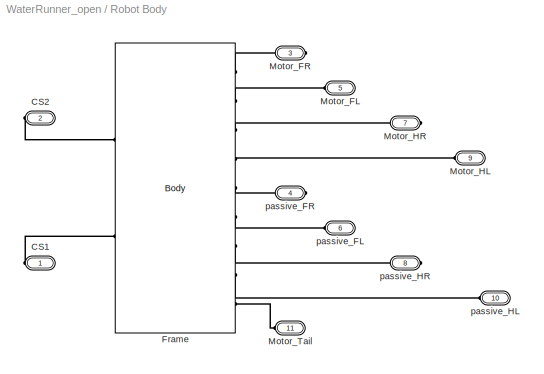
BLOCK [SubSystem] Robot Body
  AncestorBlock = WaterRunner_lib/Robot Body
  FunctionWithSeparateData = off
  MaskHideContents = off
  MinAlgLoopOccurrences = off
  Opaque = off
  Ports = [0, 0, 0, 0, 0, 5, 6]
  PropExecContextOutsideSubsystem = off
  RTWSystemCode = Auto
  RequestExecContextInheritance = off
  SID = 1291
BLOCK [PMIOPort] Robot Body/CS1
  Port = 1
  SID = 1291:529
  Side = Right
BLOCK [PMIOPort] Robot Body/CS2
  Port = 2
  SID = 1291:530
  Side = Right
BLOCK [Reference] Robot Body/Frame  REF=mblibv1/Bodies/Body
  AttachedToCS = CG
  BodyColor = [0 0 1]
  BodyColorSelMode = COLORPALETTE
  CG = Left$CG$frame_CG$WORLD$WORLD$m$[0 0 0]$Euler X-Y-Z$deg$WORLD$true$none
  CGPos = frame_CG
  CGRot = [0 0 0]
  CS0Pos = []
  CS0Rot = []
  CS10Pos = frame_passive_FR
  CS10Rot = [0 0 0]
  CS11Pos = frame_passive_FL
  CS11Rot = [0 0 0]
  CS12Pos = frame_passive_HR
  CS12Rot = [0 0 0]
  CS13Pos = frame_passive_HL
  CS13Rot = [0 0 0]
  CS14Pos = frame_motor_Tail
  CS14Rot = [0 0 0]
  CS15Pos = []
  CS15Rot = []
  CS16Pos = []
  CS16Rot = []
  CS17Pos = []
  CS17Rot = []
  CS18Pos = []
  CS18Rot = []
  CS19Pos = []
  CS19Rot = []
  CS1Pos = frame_CA
  CS1Rot = [0 0 0]
  CS20Pos = []
  CS20Rot = []
  CS2Pos = frame_FR
  CS2Rot = [0 0 0]
  CS3Pos = frame_HR
  CS3Rot = [0 0 0]
  CS4Pos = frame_FL
  CS4Rot = [0 0 0]
  CS5Pos = frame_HL
  CS5Rot = [0 0 0]
  CS6Pos = frame_motor_FR
  CS6Rot = [0 0 0]
  CS7Pos = frame_motor_FL
  CS7Rot = [0 0 0]
  CS8Pos = frame_motor_HR
  CS8Rot = [0 0 0]
  CS9Pos = frame_motor_HL
  CS9Rot = [0 0 0]
  ClassName = Body
  Density = 1
  DensityUnits = kg/m^3
  DensityUse = false
  DialogClass = MechanicalBodyBlock
  GraphicsMode = CONVHULL
  Inertia = frame_inertia
  InertiaUnits = kg*m^2
  LConnTagsString = CG|CS1
  Mass = frame_mass
  MassUnits = kg
  Ports = [0, 0, 0, 0, 0, 2, 9]
  RConnTagsString = CS6|CS7|CS8|CS9|CS10|CS11|CS12|CS13|CS14
  SID = 1291:130
  Shape = Cylinder
  ShapeDims = [1 1]
  ShapeUnits = m
  ShapeUse = false
  SourceBlock = mblibv1/Bodies/Body
  SourceType = Body
  UpdateFromCAD = off
  WorkingFrames = Left$CS1$frame_CA$World$World$m$[0 0 0]$Euler X-Y-Z$deg$WORLD$true$none#Right$CS2$frame_FR$World$World$m$[0 0 0]$Euler X-Y-Z$deg$WORLD$false$none#Right$CS4$frame_FL$World$World$m$[0 0 0]$Euler X-Y-Z$deg$WORLD$false$none#Right$CS3$frame_HR$World$World$m$[0 0 0]$Euler X-Y-Z$deg$WORLD$false$none#Right$CS5$frame_HL$WORLD$WORLD$m$[0 0 0]$Euler X-Y-Z$deg$WORLD$false$none#Right$CS6$frame_motor_FR$WORLD$W...<+693ch>
BLOCK [PMIOPort] Robot Body/Motor_FL
  Port = 5
  SID = 1291:143
  Side = Left
BLOCK [PMIOPort] Robot Body/Motor_FR
  Port = 3
  SID = 1291:141
  Side = Right
BLOCK [PMIOPort] Robot Body/Motor_HL
  Port = 9
  SID = 1291:147
  Side = Left
BLOCK [PMIOPort] Robot Body/Motor_HR
  Port = 7
  SID = 1291:145
  Side = Right
BLOCK [PMIOPort] Robot Body/Motor_Tail
  Port = 11
  SID = 1291:229
  Side = Left
BLOCK [PMIOPort] Robot Body/passive_FL
  Port = 6
  SID = 1291:144
  Side = Left
BLOCK [PMIOPort] Robot Body/passive_FR
  Port = 4
  SID = 1291:142
  Side = Right
BLOCK [PMIOPort] Robot Body/passive_HL
  Port = 10
  SID = 1291:148
  Side = Left
BLOCK [PMIOPort] Robot Body/passive_HR
  Port = 8
  SID = 1291:146
  Side = Right
BLOCK [Reference] RootGround  REF=mblibv1/Bodies/Ground
  ClassName = Ground
  CoordPosition = [0 0 0]
  CoordPositionUnits = m
  DialogClass = GroundBlock
  LeftPortType = env
  MachineId = [3 1]
  PhysicalDomain = Mechanical
  Ports = [0, 0, 0, 0, 0, 1, 1]
  RightPortType = workingframe
  SID = 2144
  ShowEnvPort = on
  SourceBlock = mblibv1/Bodies/Ground
  SourceType = Ground
  StateVectorMgrId = 5
  UpdateFromCAD = on
  UserData = DataTag0
  UserDataPersistent = on
BLOCK [Reference] RootGround1  REF=mblibv1/Bodies/Ground
  ClassName = Ground
  CoordPosition = [0 0 0]
  CoordPositionUnits = m
  DialogClass = GroundBlock
  LeftPortType = env
  MachineId = [3 0]
  PhysicalDomain = Mechanical
  Ports = [0, 0, 0, 0, 0, 1, 1]
  RightPortType = workingframe
  SID = 275
  ShowEnvPort = on
  SourceBlock = mblibv1/Bodies/Ground
  SourceType = Ground
  StateVectorMgrId = 4
  UpdateFromCAD = on
  UserData = DataTag1
  UserDataPersistent = on
BLOCK [Scope] Scope
  DataFormat = StructureWithTime
  Floating = off
  LegendLocations = 0.86404     0.89796    0.098643    0.064383
  LimitDataPoints = off
  NumInputPorts = 1
  Ports = [1]
  SID = 1226
  SampleTime = 0
  SaveName = FootForce_FL
  SaveToWorkspace = on
  ShowLegends = on
  TimeRange = 2
  YMax = 2
  YMin = -2.5
  ZoomMode = yonly
BLOCK [Scope] Scope1
  DataFormat = StructureWithTime
  Floating = off
  LegendLocations = 0.86352     0.90233    0.098643    0.064383
  LimitDataPoints = off
  NumInputPorts = 1
  Ports = [1]
  SID = 1305
  SampleTime = 0
  SaveName = FootForce_HL
  SaveToWorkspace = on
  ShowLegends = on
  TimeRange = 2
  YMax = 2
  YMin = -2.5
BLOCK [Scope] Scope2
  DataFormat = StructureWithTime
  Floating = off
  LegendLocations = 0.85016     0.92827     0.11232    0.030266\n0.84912      0.6934     0.11335    0.030266\n0.84912     0.45854     0.11335    0.030266\n0.84808     0.22488     0.11439    0.030266
  LimitDataPoints = off
  NumInputPorts = 4
  Ports = [4]
  SID = 1246
  SampleTime = 0
  SaveName = position
  SaveToWorkspace = on
  ShowLegends = on
  TimeRange = 10
  YMax = 2~2.5~0.035~0.4
  YMin = -0.25~0~-0.005~-0.3
  ZoomMode = yonly
BLOCK [Scope] Scope3
  DataFormat = StructureWithTime
  Floating = off
  LimitDataPoints = off
  NumInputPorts = 1
  Ports = [1]
  SID = 1313
  SampleTime = 0
  SaveName = FootForce_FR
  SaveToWorkspace = on
  ShowLegends = on
  TimeRange = 2
  YMax = 2
  YMin = -2.5
  ZoomMode = xonly
BLOCK [Scope] Scope4
  DataFormat = StructureWithTime
  Floating = off
  LegendLocations = 0.86352     0.90233    0.098643    0.064383
  LimitDataPoints = off
  NumInputPorts = 1
  Ports = [1]
  SID = 1320
  SampleTime = 0
  SaveName = FootForce_HR
  SaveToWorkspace = on
  ShowLegends = on
  TimeRange = 2
  YMax = 2
  YMin = -2.5
  ZoomMode = xonly
BLOCK [Scope] Scope6
  DataFormat = StructureWithTime
  Floating = off
  LimitDataPoints = off
  NumInputPorts = 3
  Ports = [3]
  SID = 1414
  SampleTime = 0
  SaveName = MotorMotion1
  SaveToWorkspace = on
  ShowLegends = off
  TimeRange = 2
  YMax = -2.5~0~30000
  YMin = -20~-90~-50000
  ZoomMode = yonly
BLOCK [Scope] Scope7
  DataFormat = StructureWithTime
  Floating = off
  LimitDataPoints = off
  NumInputPorts = 3
  Ports = [3]
  SID = 1402
  SampleTime = 0
  SaveName = MotorMotion
  ShowLegends = off
  TimeRange = 2
  YMax = 0~0~30000
  YMin = -17.5~-90~-70000
  ZoomMode = yonly
BLOCK [Scope] Scope8
  DataFormat = StructureWithTime
  Floating = off
  LimitDataPoints = off
  NumInputPorts = 2
  Ports = [2]
  SID = 2175
  SampleTime = 0
  SaveName = ball_position
  SaveToWorkspace = on
  ShowLegends = off
  TimeRange = 10
  YMax = 0.225~20
  YMin = -0.15~0
BLOCK [Selector] Selector5
  IndexOptions = Index vector (dialog)
  Indices = [2]
  InputPortWidth = 3
  OutputSizes = 1
  Ports = [1, 1]
  SID = 2151
BLOCK [Selector] Selector6
  IndexOptions = Index vector (dialog)
  Indices = [1 3]
  InputPortWidth = 3
  OutputSizes = 1
  Ports = [1, 1]
  SID = 2152
BLOCK [Stop] Stop Simulation
  SID = 1376
BLOCK [Reference] Tail  REF=WaterRunner_lib/Tail
  Ports = [0, 0, 0, 0, 0, 1, 1]
  SID = 1441
  SourceBlock = WaterRunner_lib/Tail
  SourceType = SubSystem
BLOCK [Reference] Tail Pad  REF=WaterRunner_lib/Tail Pad
  Ports = [0, 1, 0, 0, 0, 1]
  SID = 1442
  SourceBlock = WaterRunner_lib/Tail Pad
  SourceType = SubSystem
BLOCK [Terminator] Terminator
  SID = 1443
BLOCK [ToWorkspace] To Workspace
  MaxDataPoints = inf
  Ports = [1]
  SID = 1380
  SampleTime = -1
  SaveFormat = Timeseries
  VariableName = stopped
BLOCK [Reference] Water Foot+HL  REF=WaterRunner_lib/Water Foot
  Ports = [0, 1, 0, 0, 0, 1]
  SID = 1306
  SourceBlock = WaterRunner_lib/Water Foot
  SourceType = SubSystem
BLOCK [Reference] Water Foot_FL  REF=WaterRunner_lib/Water Foot
  Ports = [0, 1, 0, 0, 0, 1]
  SID = 1300
  SourceBlock = WaterRunner_lib/Water Foot
  SourceType = SubSystem
BLOCK [Reference] Water Foot_FR  REF=WaterRunner_lib/Water Foot
  Ports = [0, 1, 0, 0, 0, 1]
  SID = 1309
  SourceBlock = WaterRunner_lib/Water Foot
  SourceType = SubSystem
BLOCK [Reference] Water Foot_HR  REF=WaterRunner_lib/Water Foot
  Ports = [0, 1, 0, 0, 0, 1]
  SID = 1321
  SourceBlock = WaterRunner_lib/Water Foot
  SourceType = SubSystem
BLOCK [Reference] Weld  REF=mblibv1/Joints/Weld
  ClassName = Joint
  CutJoint = off
  DialogClass = JointBlock
  LConnTagsString = __newl0
  MarkAsCut = off
  NumSAPorts = 0
  Ports = [0, 0, 0, 0, 0, 1, 1]
  PrimitiveProps = W$WORLD$[0 0 0]$weld
  Primitives = weld
  RConnTagsString = __newr0
  SID = 274
  SourceBlock = mblibv1/Joints/Weld
  SourceType = Weld
  UpdateFromCAD = off
  WAxis = [0 0 0]
BLOCK [Reference] motor_closed  REF=WaterRunner_lib/motor_closed
  Ports = [1, 1, 0, 0, 0, 1, 1]
  SID = 1663
  SourceBlock = WaterRunner_lib/motor_closed
  ic_angle = pi
BLOCK [Reference] motor_closed1  REF=WaterRunner_lib/motor_closed
  Ports = [1, 1, 0, 0, 0, 1, 1]
  SID = 1664
  SourceBlock = WaterRunner_lib/motor_closed
  ic_angle = 0
BLOCK [Reference] motor_closed2  REF=WaterRunner_lib/motor_closed
  Ports = [1, 1, 0, 0, 0, 1, 1]
  SID = 1665
  SourceBlock = WaterRunner_lib/motor_closed
  ic_angle = 0
BLOCK [Reference] motor_closed3  REF=WaterRunner_lib/motor_closed
  Ports = [1, 1, 0, 0, 0, 1, 1]
  SID = 1666
  SourceBlock = WaterRunner_lib/motor_closed
  ic_angle = pi
BLOCK [Reference] servo  REF=WaterRunner_lib/servo
  Ports = [0, 0, 0, 0, 0, 1, 1]
  SID = 1440
  SourceBlock = WaterRunner_lib/servo
  VariableName = work_tail
  tail_angle = tail_angle
ANNOTATION (root): WaterRunner Robot\n(CMU-NanoRobotics Lab)
LINE Body Sensor6:1 -> Selector5:1
LINE Body Sensor6:2 -> Selector6:1
LINE CPG_Network2/F1:1 -> CPG_Network2/Mux:1
LINE CPG_Network2/F2:1 -> CPG_Network2/Mux:2
LINE CPG_Network2/F3:1 -> CPG_Network2/Mux:3
LINE CPG_Network2/F4:1 -> CPG_Network2/Mux:4
LINE CPG_Network2/FL_HL lag/Constant:1 -> CPG_Network2/FL_HL lag/Sum:2
LINE CPG_Network2/FL_HL lag/Gain:1 -> CPG_Network2/FL_HL lag/Out2:1
LINE CPG_Network2/FL_HL lag/In1:1 -> CPG_Network2/FL_HL lag/Sum:1
LINE CPG_Network2/FL_HL lag/In2:1 -> CPG_Network2/FL_HL lag/Sum:3
LINE CPG_Network2/FL_HL lag/Sum:1 -> CPG_Network2/FL_HL lag/sin:1
NET CPG_Network2/FL_HL lag/sin:1 -> CPG_Network2/FL_HL lag/Gain:1, CPG_Network2/FL_HL lag/Out1:1
LINE CPG_Network2/FL_HL lag:1 -> CPG_Network2/Goto16:1
LINE CPG_Network2/FL_HL lag:2 -> CPG_Network2/Goto15:1
LINE CPG_Network2/FL_w_neg:1 -> CPG_Network2/split FL:3
LINE CPG_Network2/FL_w_pos:1 -> CPG_Network2/split FL:1
LINE CPG_Network2/FR_FL lag/Constant:1 -> CPG_Network2/FR_FL lag/Sum:2
LINE CPG_Network2/FR_FL lag/Gain:1 -> CPG_Network2/FR_FL lag/Out2:1
LINE CPG_Network2/FR_FL lag/In1:1 -> CPG_Network2/FR_FL lag/Sum:1
LINE CPG_Network2/FR_FL lag/In2:1 -> CPG_Network2/FR_FL lag/Sum:3
LINE CPG_Network2/FR_FL lag/Sum:1 -> CPG_Network2/FR_FL lag/sin:1
NET CPG_Network2/FR_FL lag/sin:1 -> CPG_Network2/FR_FL lag/Gain:1, CPG_Network2/FR_FL lag/Out1:1
LINE CPG_Network2/FR_FL lag:1 -> CPG_Network2/Goto8:1
LINE CPG_Network2/FR_FL lag:2 -> CPG_Network2/Goto2:1
LINE CPG_Network2/FR_HR lag/Constant:1 -> CPG_Network2/FR_HR lag/Sum:2
LINE CPG_Network2/FR_HR lag/Gain:1 -> CPG_Network2/FR_HR lag/Out2:1
LINE CPG_Network2/FR_HR lag/In1:1 -> CPG_Network2/FR_HR lag/Sum:1
LINE CPG_Network2/FR_HR lag/In2:1 -> CPG_Network2/FR_HR lag/Sum:3
LINE CPG_Network2/FR_HR lag/Sum:1 -> CPG_Network2/FR_HR lag/sin:1
NET CPG_Network2/FR_HR lag/sin:1 -> CPG_Network2/FR_HR lag/Gain:1, CPG_Network2/FR_HR lag/Out1:1
LINE CPG_Network2/FR_HR lag:1 -> CPG_Network2/Goto14:1
LINE CPG_Network2/FR_HR lag:2 -> CPG_Network2/Goto13:1
LINE CPG_Network2/FR_w_neg:1 -> CPG_Network2/split FL1:3
LINE CPG_Network2/FR_w_pos:1 -> CPG_Network2/split FL1:1
LINE CPG_Network2/From10:1 -> CPG_Network2/FR_FL lag:2
LINE CPG_Network2/From11:1 -> CPG_Network2/HR_HL lag:1
LINE CPG_Network2/From12:1 -> CPG_Network2/FL_HL lag:2
LINE CPG_Network2/From13:1 -> CPG_Network2/FL_HL lag:1
LINE CPG_Network2/From14:1 -> CPG_Network2/Sum2:3
LINE CPG_Network2/From15:1 -> CPG_Network2/Sum3:3
LINE CPG_Network2/From16:1 -> CPG_Network2/Sum1:3
LINE CPG_Network2/From17:1 -> CPG_Network2/Mux1:1
LINE CPG_Network2/From18:1 -> CPG_Network2/Mux1:2
LINE CPG_Network2/From19:1 -> CPG_Network2/Mux1:3
LINE CPG_Network2/From1:1 -> CPG_Network2/Sum:3
LINE CPG_Network2/From20:1 -> CPG_Network2/Mux1:4
LINE CPG_Network2/From2:1 -> CPG_Network2/Sum1:2
LINE CPG_Network2/From3:1 -> CPG_Network2/FR_HR lag:2
LINE CPG_Network2/From4:1 -> CPG_Network2/FR_HR lag:1
LINE CPG_Network2/From5:1 -> CPG_Network2/HR_HL lag:2
LINE CPG_Network2/From6:1 -> CPG_Network2/Sum:2
LINE CPG_Network2/From7:1 -> CPG_Network2/Sum3:2
LINE CPG_Network2/From8:1 -> CPG_Network2/Sum2:2
LINE CPG_Network2/From9:1 -> CPG_Network2/FR_FL lag:1
LINE CPG_Network2/Front_Left/Integrator3:1 -> CPG_Network2/Front_Left/Mod 2pi:1
LINE CPG_Network2/Front_Left/Mod 2pi:1 -> CPG_Network2/Front_Left/phase:1
NET CPG_Network2/Front_Left/force:1 -> CPG_Network2/Front_Left/Integrator3:1, CPG_Network2/Front_Left/vel:1
NET CPG_Network2/Front_Left:1 -> CPG_Network2/FL_PVA:1, CPG_Network2/Goto1:1
NET CPG_Network2/Front_Left:2 -> CPG_Network2/Goto3:1, CPG_Network2/split FL:2
LINE CPG_Network2/Front_Right/Integrator3:1 -> CPG_Network2/Front_Right/Mod 2pi:1
LINE CPG_Network2/Front_Right/Mod 2pi:1 -> CPG_Network2/Front_Right/phase:1
NET CPG_Network2/Front_Right/force:1 -> CPG_Network2/Front_Right/Integrator3:1, CPG_Network2/Front_Right/vel:1
NET CPG_Network2/Front_Right:1 -> CPG_Network2/FR_PVA:1, CPG_Network2/Goto6:1
NET CPG_Network2/Front_Right:2 -> CPG_Network2/Goto7:1, CPG_Network2/split FL1:2
LINE CPG_Network2/HL_w_neg:1 -> CPG_Network2/split FL3:3
LINE CPG_Network2/HL_w_pos:1 -> CPG_Network2/split FL3:1
LINE CPG_Network2/HR_HL lag/Constant:1 -> CPG_Network2/HR_HL lag/Sum:2
LINE CPG_Network2/HR_HL lag/Gain:1 -> CPG_Network2/HR_HL lag/Out2:1
LINE CPG_Network2/HR_HL lag/In1:1 -> CPG_Network2/HR_HL lag/Sum:1
LINE CPG_Network2/HR_HL lag/In2:1 -> CPG_Network2/HR_HL lag/Sum:3
LINE CPG_Network2/HR_HL lag/Sum:1 -> CPG_Network2/HR_HL lag/sin:1
NET CPG_Network2/HR_HL lag/sin:1 -> CPG_Network2/HR_HL lag/Gain:1, CPG_Network2/HR_HL lag/Out1:1
LINE CPG_Network2/HR_HL lag:1 -> CPG_Network2/Goto12:1
LINE CPG_Network2/HR_HL lag:2 -> CPG_Network2/Goto5:1
LINE CPG_Network2/HR_w_neg:1 -> CPG_Network2/split FL2:3
LINE CPG_Network2/HR_w_pos:1 -> CPG_Network2/split FL2:1
LINE CPG_Network2/Hind_Left/Integrator3:1 -> CPG_Network2/Hind_Left/Mod 2pi:1
LINE CPG_Network2/Hind_Left/Mod 2pi:1 -> CPG_Network2/Hind_Left/phase:1
NET CPG_Network2/Hind_Left/force:1 -> CPG_Network2/Hind_Left/Integrator3:1, CPG_Network2/Hind_Left/vel:1
NET CPG_Network2/Hind_Left:1 -> CPG_Network2/Goto4:1, CPG_Network2/HL_PVA:1
NET CPG_Network2/Hind_Left:2 -> CPG_Network2/Goto9:1, CPG_Network2/split FL3:2
LINE CPG_Network2/Hind_Right/Integrator3:1 -> CPG_Network2/Hind_Right/Mod 2pi:1
LINE CPG_Network2/Hind_Right/Mod 2pi:1 -> CPG_Network2/Hind_Right/phase:1
NET CPG_Network2/Hind_Right/force:1 -> CPG_Network2/Hind_Right/Integrator3:1, CPG_Network2/Hind_Right/vel:1
NET CPG_Network2/Hind_Right:1 -> CPG_Network2/Goto10:1, CPG_Network2/HR_PVA:1
NET CPG_Network2/Hind_Right:2 -> CPG_Network2/Goto11:1, CPG_Network2/split FL2:2
LINE CPG_Network2/Mux1:1 -> CPG_Network2/Scope3:2
LINE CPG_Network2/Mux:1 -> CPG_Network2/Scope3:1
LINE CPG_Network2/Sum1:1 -> CPG_Network2/Front_Left:1
LINE CPG_Network2/Sum2:1 -> CPG_Network2/Hind_Right:1
LINE CPG_Network2/Sum3:1 -> CPG_Network2/Hind_Left:1
LINE CPG_Network2/Sum:1 -> CPG_Network2/Front_Right:1
LINE CPG_Network2/split FL/Product1:1 -> CPG_Network2/split FL/Sum2:2
LINE CPG_Network2/split FL/Product:1 -> CPG_Network2/split FL/Sum2:1
LINE CPG_Network2/split FL/Sum2:1 -> CPG_Network2/split FL/Force:1
LINE CPG_Network2/split FL/enable/Constant1:1 -> CPG_Network2/split FL/enable/Sum1:2
LINE CPG_Network2/split FL/enable/Constant2:1 -> CPG_Network2/split FL/enable/Sum2:2
LINE CPG_Network2/split FL/enable/Fcn:1 -> CPG_Network2/split FL/enable/Sign:1
LINE CPG_Network2/split FL/enable/Gain1:1 -> CPG_Network2/split FL/enable/neg:1
LINE CPG_Network2/split FL/enable/Gain:1 -> CPG_Network2/split FL/enable/pos:1
NET CPG_Network2/split FL/enable/Sign:1 -> CPG_Network2/split FL/enable/Sum1:1, CPG_Network2/split FL/enable/Sum2:1
LINE CPG_Network2/split FL/enable/Sum1:1 -> CPG_Network2/split FL/enable/Gain:1
LINE CPG_Network2/split FL/enable/Sum2:1 -> CPG_Network2/split FL/enable/Gain1:1
LINE CPG_Network2/split FL/enable/in:1 -> CPG_Network2/split FL/enable/Fcn:1
LINE CPG_Network2/split FL/enable:1 -> CPG_Network2/split FL/Product:2
LINE CPG_Network2/split FL/enable:2 -> CPG_Network2/split FL/Product1:2
LINE CPG_Network2/split FL/phase:1 -> CPG_Network2/split FL/enable:1
LINE CPG_Network2/split FL/w_neg:1 -> CPG_Network2/split FL/Product1:1
LINE CPG_Network2/split FL/w_pos:1 -> CPG_Network2/split FL/Product:1
LINE CPG_Network2/split FL1/Product1:1 -> CPG_Network2/split FL1/Sum2:2
LINE CPG_Network2/split FL1/Product:1 -> CPG_Network2/split FL1/Sum2:1
LINE CPG_Network2/split FL1/Sum2:1 -> CPG_Network2/split FL1/Force:1
LINE CPG_Network2/split FL1/enable/Constant1:1 -> CPG_Network2/split FL1/enable/Sum1:2
LINE CPG_Network2/split FL1/enable/Constant2:1 -> CPG_Network2/split FL1/enable/Sum2:2
LINE CPG_Network2/split FL1/enable/Fcn:1 -> CPG_Network2/split FL1/enable/Sign:1
LINE CPG_Network2/split FL1/enable/Gain1:1 -> CPG_Network2/split FL1/enable/neg:1
LINE CPG_Network2/split FL1/enable/Gain:1 -> CPG_Network2/split FL1/enable/pos:1
NET CPG_Network2/split FL1/enable/Sign:1 -> CPG_Network2/split FL1/enable/Sum1:1, CPG_Network2/split FL1/enable/Sum2:1
LINE CPG_Network2/split FL1/enable/Sum1:1 -> CPG_Network2/split FL1/enable/Gain:1
LINE CPG_Network2/split FL1/enable/Sum2:1 -> CPG_Network2/split FL1/enable/Gain1:1
LINE CPG_Network2/split FL1/enable/in:1 -> CPG_Network2/split FL1/enable/Fcn:1
LINE CPG_Network2/split FL1/enable:1 -> CPG_Network2/split FL1/Product:2
LINE CPG_Network2/split FL1/enable:2 -> CPG_Network2/split FL1/Product1:2
LINE CPG_Network2/split FL1/phase:1 -> CPG_Network2/split FL1/enable:1
LINE CPG_Network2/split FL1/w_neg:1 -> CPG_Network2/split FL1/Product1:1
LINE CPG_Network2/split FL1/w_pos:1 -> CPG_Network2/split FL1/Product:1
LINE CPG_Network2/split FL1:1 -> CPG_Network2/Sum:1
LINE CPG_Network2/split FL2/Product1:1 -> CPG_Network2/split FL2/Sum2:2
LINE CPG_Network2/split FL2/Product:1 -> CPG_Network2/split FL2/Sum2:1
LINE CPG_Network2/split FL2/Sum2:1 -> CPG_Network2/split FL2/Force:1
LINE CPG_Network2/split FL2/enable/Constant1:1 -> CPG_Network2/split FL2/enable/Sum1:2
LINE CPG_Network2/split FL2/enable/Constant2:1 -> CPG_Network2/split FL2/enable/Sum2:2
LINE CPG_Network2/split FL2/enable/Fcn:1 -> CPG_Network2/split FL2/enable/Sign:1
LINE CPG_Network2/split FL2/enable/Gain1:1 -> CPG_Network2/split FL2/enable/neg:1
LINE CPG_Network2/split FL2/enable/Gain:1 -> CPG_Network2/split FL2/enable/pos:1
NET CPG_Network2/split FL2/enable/Sign:1 -> CPG_Network2/split FL2/enable/Sum1:1, CPG_Network2/split FL2/enable/Sum2:1
LINE CPG_Network2/split FL2/enable/Sum1:1 -> CPG_Network2/split FL2/enable/Gain:1
LINE CPG_Network2/split FL2/enable/Sum2:1 -> CPG_Network2/split FL2/enable/Gain1:1
LINE CPG_Network2/split FL2/enable/in:1 -> CPG_Network2/split FL2/enable/Fcn:1
LINE CPG_Network2/split FL2/enable:1 -> CPG_Network2/split FL2/Product:2
LINE CPG_Network2/split FL2/enable:2 -> CPG_Network2/split FL2/Product1:2
LINE CPG_Network2/split FL2/phase:1 -> CPG_Network2/split FL2/enable:1
LINE CPG_Network2/split FL2/w_neg:1 -> CPG_Network2/split FL2/Product1:1
LINE CPG_Network2/split FL2/w_pos:1 -> CPG_Network2/split FL2/Product:1
LINE CPG_Network2/split FL2:1 -> CPG_Network2/Sum2:1
LINE CPG_Network2/split FL3/Product1:1 -> CPG_Network2/split FL3/Sum2:2
LINE CPG_Network2/split FL3/Product:1 -> CPG_Network2/split FL3/Sum2:1
LINE CPG_Network2/split FL3/Sum2:1 -> CPG_Network2/split FL3/Force:1
LINE CPG_Network2/split FL3/enable/Constant1:1 -> CPG_Network2/split FL3/enable/Sum1:2
LINE CPG_Network2/split FL3/enable/Constant2:1 -> CPG_Network2/split FL3/enable/Sum2:2
LINE CPG_Network2/split FL3/enable/Fcn:1 -> CPG_Network2/split FL3/enable/Sign:1
LINE CPG_Network2/split FL3/enable/Gain1:1 -> CPG_Network2/split FL3/enable/neg:1
LINE CPG_Network2/split FL3/enable/Gain:1 -> CPG_Network2/split FL3/enable/pos:1
NET CPG_Network2/split FL3/enable/Sign:1 -> CPG_Network2/split FL3/enable/Sum1:1, CPG_Network2/split FL3/enable/Sum2:1
LINE CPG_Network2/split FL3/enable/Sum1:1 -> CPG_Network2/split FL3/enable/Gain:1
LINE CPG_Network2/split FL3/enable/Sum2:1 -> CPG_Network2/split FL3/enable/Gain1:1
LINE CPG_Network2/split FL3/enable/in:1 -> CPG_Network2/split FL3/enable/Fcn:1
LINE CPG_Network2/split FL3/enable:1 -> CPG_Network2/split FL3/Product:2
LINE CPG_Network2/split FL3/enable:2 -> CPG_Network2/split FL3/Product1:2
LINE CPG_Network2/split FL3/phase:1 -> CPG_Network2/split FL3/enable:1
LINE CPG_Network2/split FL3/w_neg:1 -> CPG_Network2/split FL3/Product1:1
LINE CPG_Network2/split FL3/w_pos:1 -> CPG_Network2/split FL3/Product:1
LINE CPG_Network2/split FL3:1 -> CPG_Network2/Sum3:1
LINE CPG_Network2/split FL:1 -> CPG_Network2/Sum1:1
LINE CPG_Network2:1 -> Goto:1
LINE CPG_Network2:2 -> Goto1:1
LINE CPG_Network2:3 -> Goto2:1
LINE CPG_Network2:4 -> Goto3:1
NET Compare\nTo Constant:1 -> Stop Simulation:1, To Workspace:1
NET Constant:1 -> CPG_Network2:1, CPG_Network2:2, CPG_Network2:3, CPG_Network2:4, CPG_Network2:5, CPG_Network2:6, CPG_Network2:7, CPG_Network2:8
LINE Demux1:1 -> Mux1:1
LINE Demux1:2 -> Mux1:2
LINE Demux1:3 -> Mux1:3
LINE Demux2:1 -> Mux2:1
LINE Demux2:2 -> Mux2:2
LINE Demux2:3 -> Mux2:3
LINE Demux3:1 -> Mux3:1
LINE Demux3:2 -> Mux3:2
LINE Demux3:3 -> Mux3:3
LINE Demux5:1 -> Scope7:1
LINE Demux5:2 -> Scope7:2
LINE Demux5:3 -> Scope7:3
LINE Demux6:1 -> Scope6:1
LINE Demux6:2 -> Scope6:2
LINE Demux6:3 -> Scope6:3
LINE Demux:1 -> Mux:1
LINE Demux:2 -> Mux:2
LINE Demux:3 -> Mux:3
LINE From10:1 -> motor_closed2:1
LINE From11:1 -> motor_closed3:1
LINE From1:1 -> Scope2:2
NET From2:1 -> Compare\nTo Constant:1, Scope2:3
LINE From3:1 -> Scope2:4
LINE From8:1 -> motor_closed1:1
LINE From9:1 -> motor_closed:1
LINE From:1 -> Scope2:1
LINE Gain:1 -> Scope8:2
LINE Integrator1:1 -> Gain:1
LINE Mux1:1 -> Scope1:1
LINE Mux2:1 -> Scope3:1
LINE Mux3:1 -> Scope4:1
LINE Mux:1 -> Scope:1
LINE Selector5:1 -> Scope8:1
LINE Selector6:1 -> Integrator1:1
LINE Tail Pad:1 -> Terminator:1
LINE Water Foot+HL:1 -> Demux1:1
LINE Water Foot_FL:1 -> Demux:1
LINE Water Foot_FR:1 -> Demux2:1
LINE Water Foot_HR:1 -> Demux3:1
LINE motor_closed2:1 -> Demux6:1
LINE motor_closed:1 -> Demux5:1
PLINE Body Sensor6:LConn1 -- Robot Body:RConn2
PLINE Body:LConn1 -- Weld:RConn1
PLINE Custom Joint:LConn1 -- RootGround:RConn1
PLINE Custom Joint:LConn2 -- Joint Initial Condition:RConn1
PLINE Custom Joint:RConn1 -- Robot Body:RConn1
PLINE Leg FL:LConn1 -- motor_closed2:RConn1
PLINE Leg FL:LConn2 -- Robot Body:LConn2
PLINE Leg FL:RConn1 -- Water Foot_FL:LConn1
PLINE Leg FR/L2_segment:LConn1 -- Leg FR/motor:RConn1
PLINE Leg FR/L2_segment:RConn1 -- Leg FR/Revolute2:LConn1
PLINE Leg FR/L3_segment:LConn1 -- Leg FR/Revolute2:RConn1
PLINE Leg FR/L3_segment:RConn1 -- Leg FR/Revolute3:RConn1
PLINE Leg FR/L3_segment:RConn2 -- Leg FR/end:RConn1
PLINE Leg FR/L4_segment:LConn1 -- Leg FR/Revolute1:RConn1
PLINE Leg FR/L4_segment:RConn1 -- Leg FR/Revolute3:LConn1
PLINE Leg FR/Revolute1:LConn1 -- Leg FR/body:RConn1
PLINE Leg FR:LConn1 -- motor_closed:RConn1
PLINE Leg FR:LConn2 -- Robot Body:RConn4
PLINE Leg FR:RConn1 -- Water Foot_FR:LConn1
PLINE Leg_HL:LConn1 -- motor_closed3:RConn1
PLINE Leg_HL:LConn2 -- Robot Body:LConn4
PLINE Leg_HL:RConn1 -- Water Foot+HL:LConn1
PLINE Leg_HR:LConn1 -- motor_closed1:RConn1
PLINE Leg_HR:LConn2 -- Robot Body:RConn6
PLINE Leg_HR:RConn1 -- Water Foot_HR:LConn1
PLINE Machine\nEnvironment1:RConn1 -- RootGround:LConn1
PLINE Machine\nEnvironment:RConn1 -- RootGround1:LConn1
PLINE Robot Body/CS1:RConn1 -- Robot Body/Frame:LConn2
PLINE Robot Body/CS2:RConn1 -- Robot Body/Frame:LConn1
PLINE Robot Body/Frame:RConn1 -- Robot Body/Motor_FR:RConn1
PLINE Robot Body/Frame:RConn2 -- Robot Body/Motor_FL:RConn1
PLINE Robot Body/Frame:RConn3 -- Robot Body/Motor_HR:RConn1
PLINE Robot Body/Frame:RConn4 -- Robot Body/Motor_HL:RConn1
PLINE Robot Body/Frame:RConn5 -- Robot Body/passive_FR:RConn1
PLINE Robot Body/Frame:RConn6 -- Robot Body/passive_FL:RConn1
PLINE Robot Body/Frame:RConn7 -- Robot Body/passive_HR:RConn1
PLINE Robot Body/Frame:RConn8 -- Robot Body/passive_HL:RConn1
PLINE Robot Body/Frame:RConn9 -- Robot Body/Motor_Tail:RConn1
PLINE Robot Body:LConn1 -- motor_closed2:LConn1
PLINE Robot Body:LConn3 -- motor_closed3:LConn1
PLINE Robot Body:LConn5 -- servo:LConn1
PLINE Robot Body:RConn3 -- motor_closed:LConn1
PLINE Robot Body:RConn5 -- motor_closed1:LConn1
PLINE RootGround1:RConn1 -- Weld:LConn1
PLINE Tail Pad:LConn1 -- Tail:RConn1
PLINE Tail:LConn1 -- servo:RConn1
note: NET lines group one-source signal fan-out (src -> all destinations, sorted); 1:1 wires keep LINE
